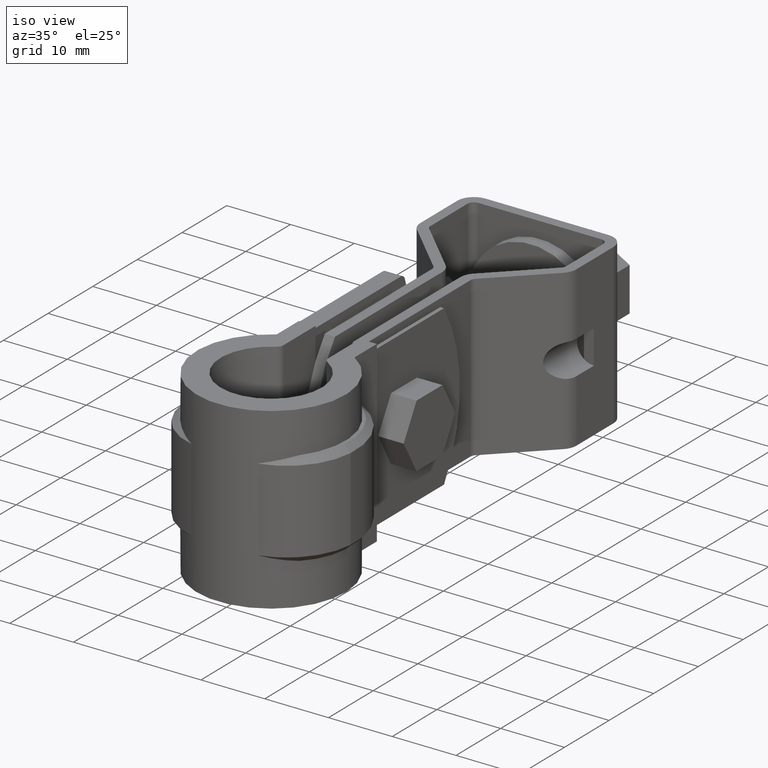
[diagram: clean part render]
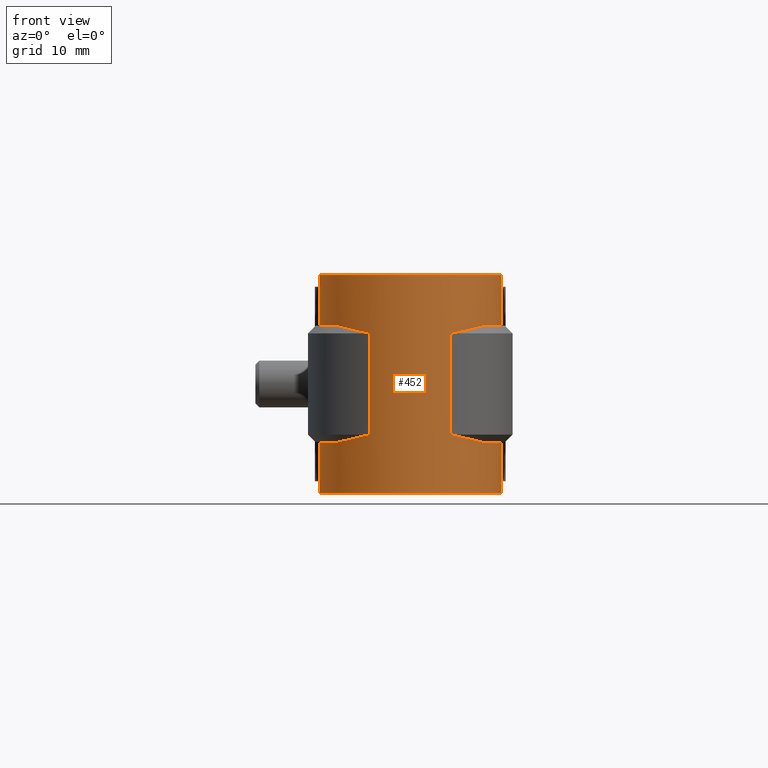
[diagram: tour spotlight — one face highlighted and labeled with its STEP entity id]
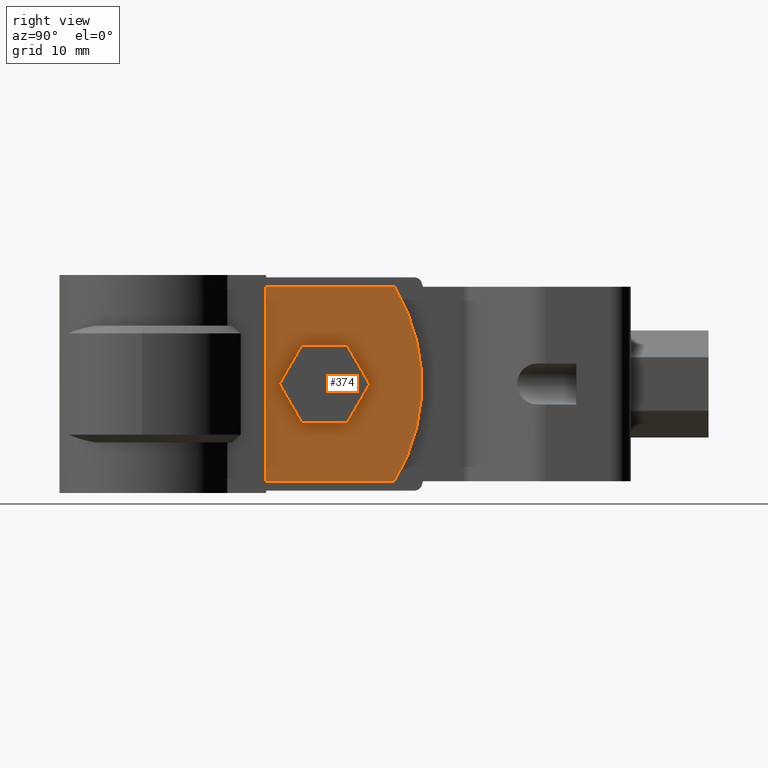
[diagram: tour spotlight — one face highlighted and labeled with its STEP entity id]
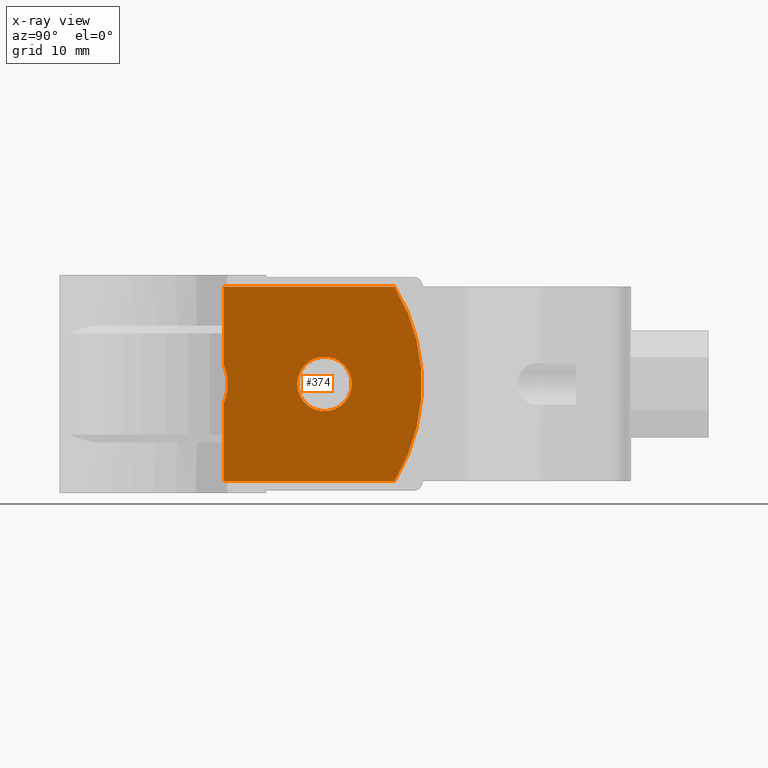
[diagram: x-ray of the same camera — body ghosted, this tour face saturated]
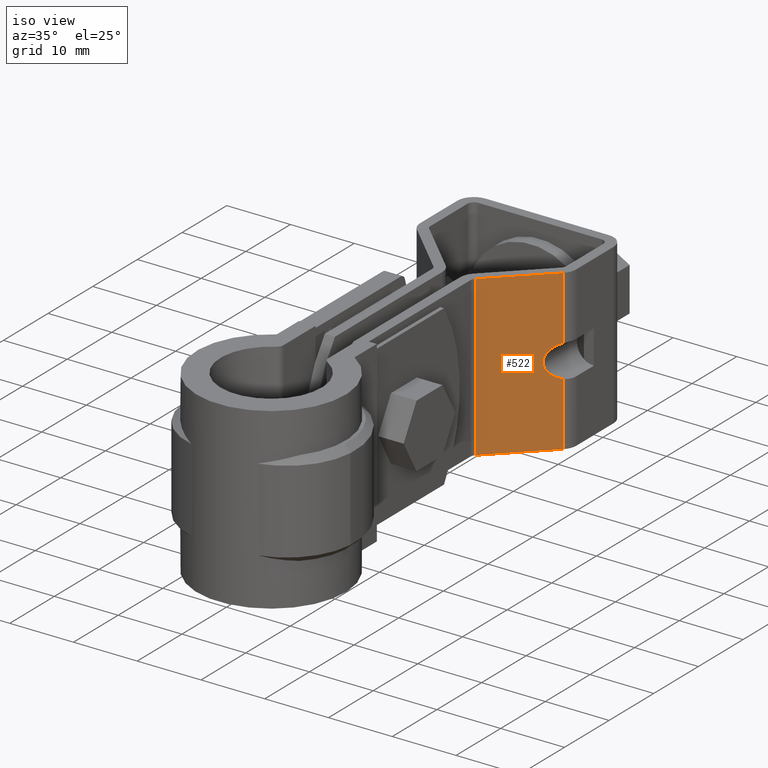
[diagram: tour spotlight — one face highlighted and labeled with its STEP entity id]
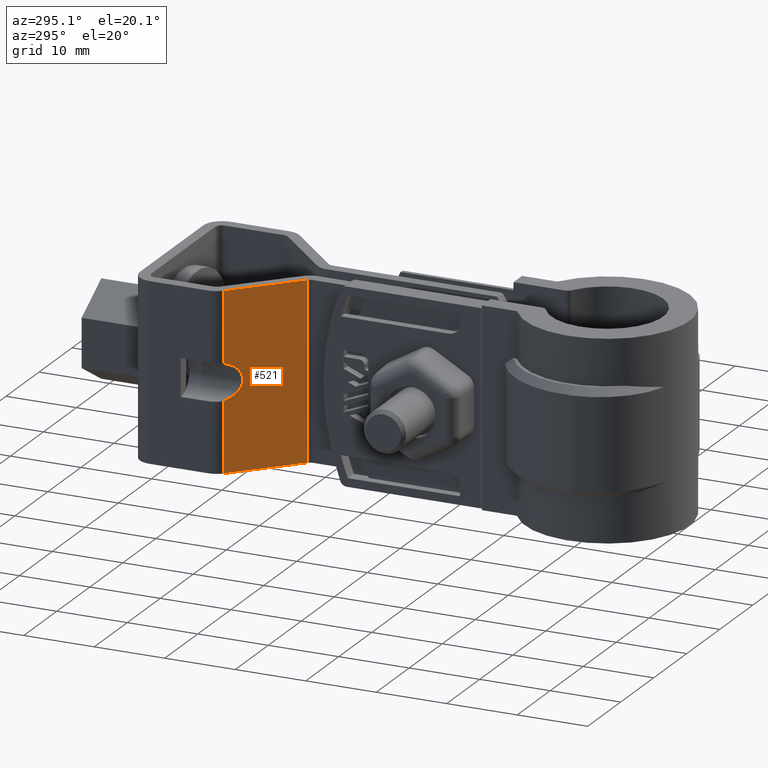
[diagram: tour spotlight — one face highlighted and labeled with its STEP entity id]
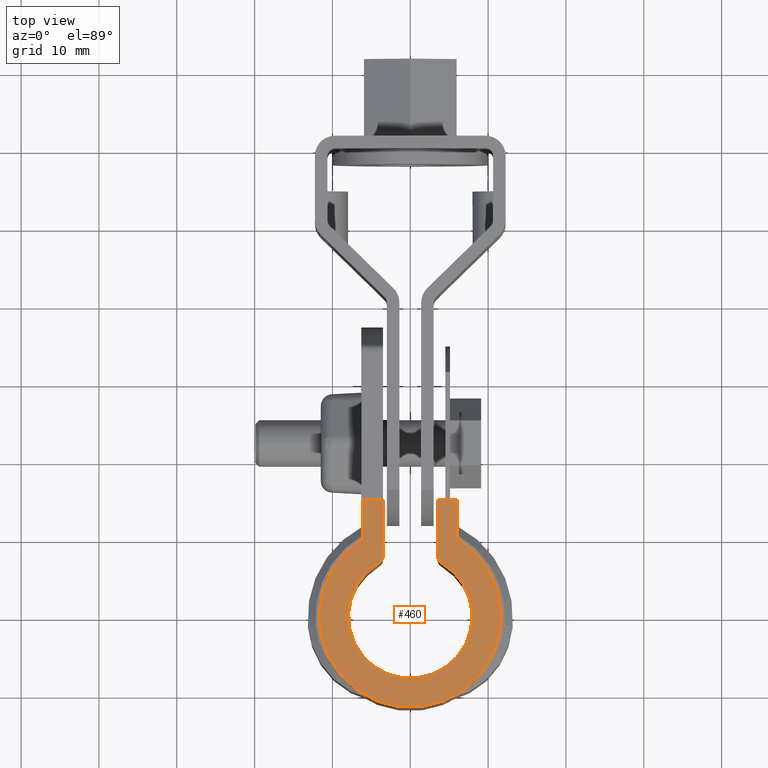
[diagram: tour spotlight — one face highlighted and labeled with its STEP entity id]
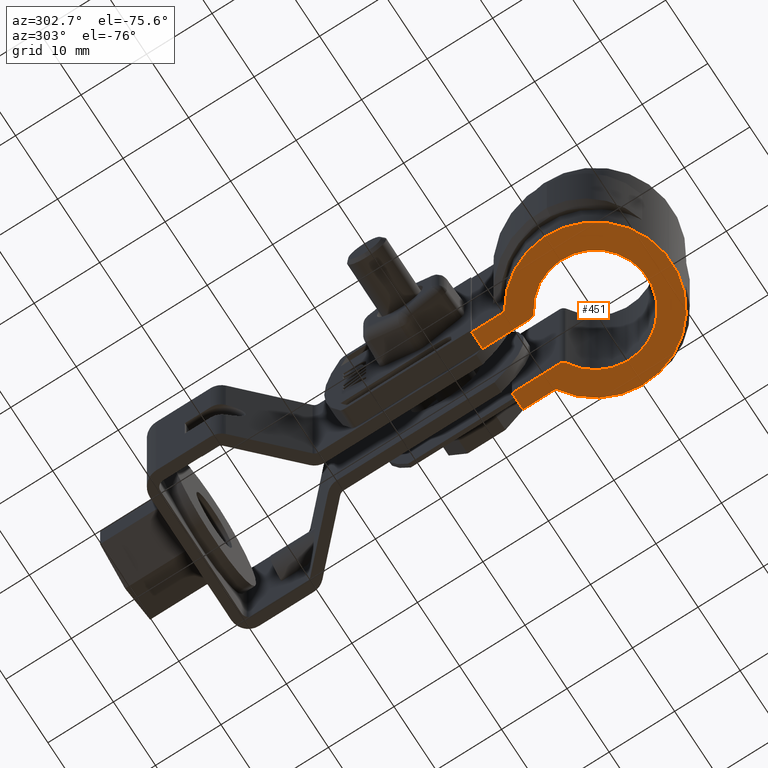
[diagram: tour spotlight — one face highlighted and labeled with its STEP entity id]
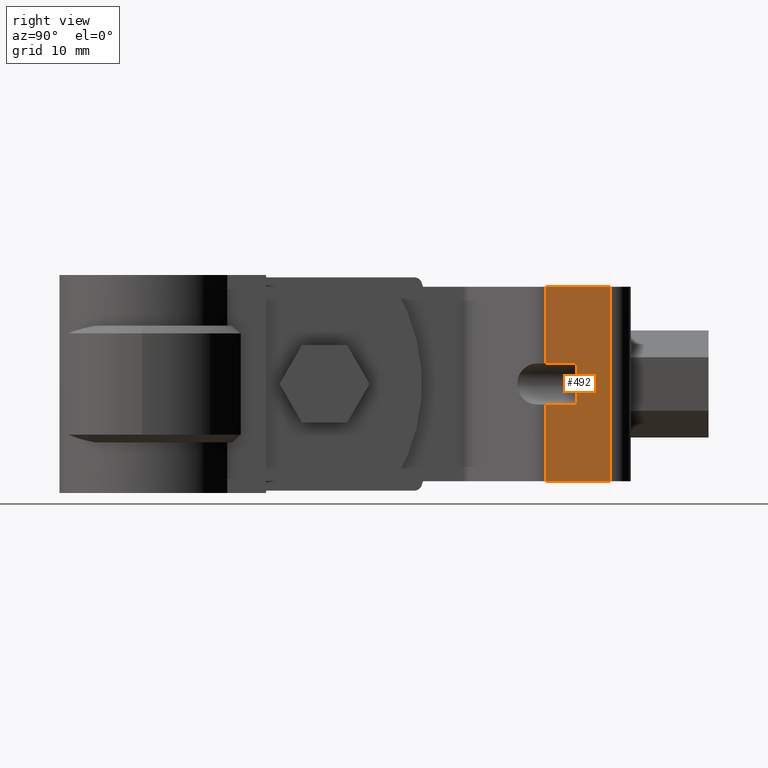
[diagram: tour spotlight — one face highlighted and labeled with its STEP entity id]
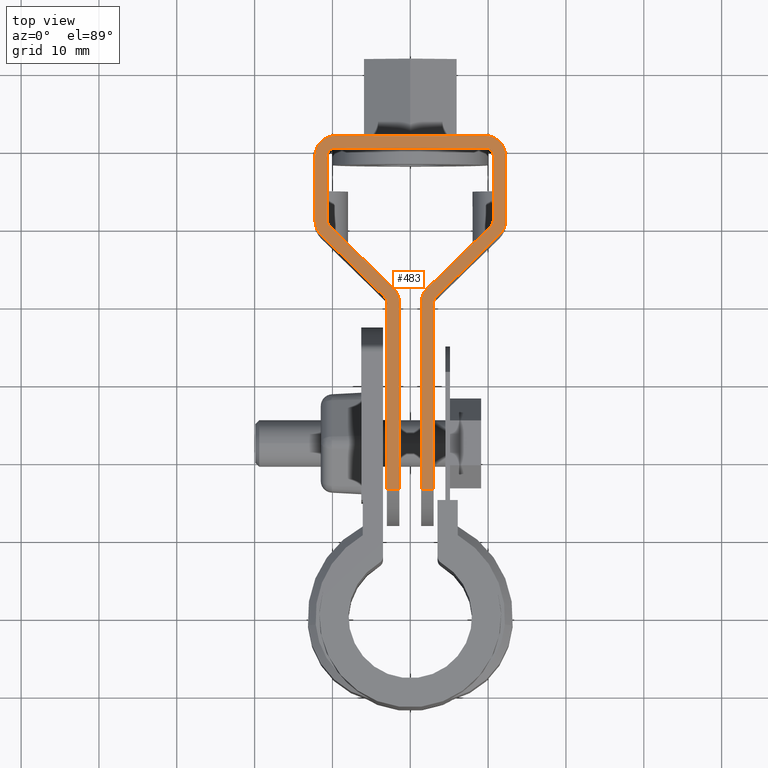
[diagram: tour spotlight — one face highlighted and labeled with its STEP entity id]
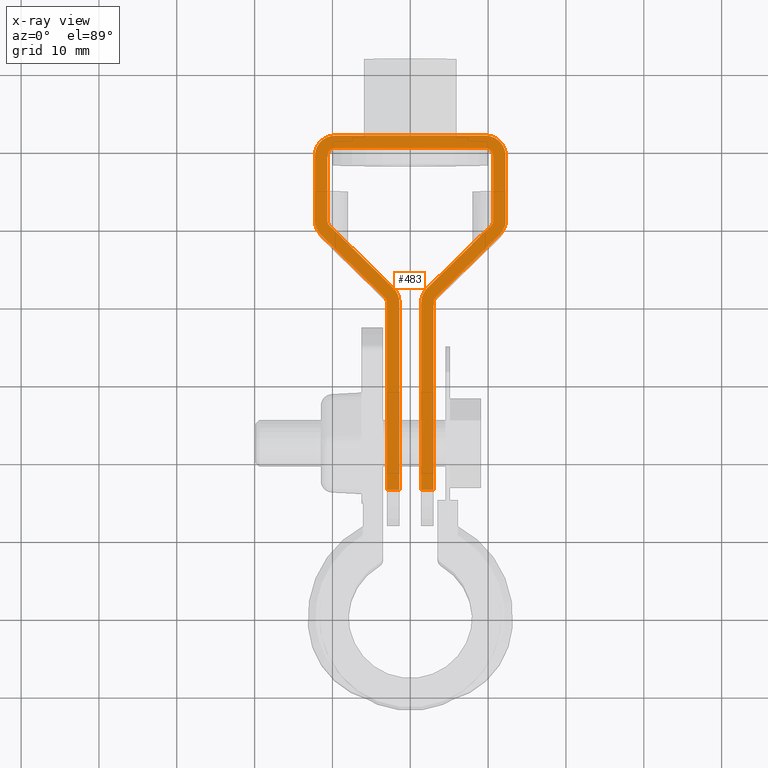
[diagram: x-ray of the same camera — body ghosted, this tour face saturated]
A machine part: a face-by-face anatomy tour. The part has 329 B-rep faces; the first image is the clean iso view, then the 8 largest visible faces are spotlighted one at a time (largest first), each with its STEP entity span.

Face 1 — front view, entity #452. In plain terms, the highlighted cylindrical surface (partial cylindrical patch) has radius 11.685 mm, axis along (0, 0, -1).
Definition (entity closure, byte-faithful):
#452 = ADVANCED_FACE( '', ( #878 ), #879, .T. );
#878 = FACE_OUTER_BOUND( '', #2159, .T. );
#879 = CYLINDRICAL_SURFACE( '', #2160, 11.6850000000000 );
#2159 = EDGE_LOOP( '', ( #4356, #4357, #4358, #4359, #4360, #4361, #4362, #4363, #4364, #4365, #4366, #4367, #4368, #4369, #4370, #4371 ) );
#2160 = AXIS2_PLACEMENT_3D( '', #4372, #4373, #4374 );
#4356 = ORIENTED_EDGE( '', *, *, #6669, .T. );
#4357 = ORIENTED_EDGE( '', *, *, #6833, .T. );
#4358 = ORIENTED_EDGE( '', *, *, #6825, .T. );
#4359 = ORIENTED_EDGE( '', *, *, #6834, .F. );
#4360 = ORIENTED_EDGE( '', *, *, #6835, .T. );
#4361 = ORIENTED_EDGE( '', *, *, #6836, .F. );
#4362 = ORIENTED_EDGE( '', *, *, #6663, .T. );
#4363 = ORIENTED_EDGE( '', *, *, #6837, .F. );
#4364 = ORIENTED_EDGE( '', *, *, #6679, .F. );
#4365 = ORIENTED_EDGE( '', *, *, #6838, .F. );
#4366 = ORIENTED_EDGE( '', *, *, #6839, .T. );
#4367 = ORIENTED_EDGE( '', *, *, #6840, .F. );
#4368 = ORIENTED_EDGE( '', *, *, #6841, .T. );
#4369 = ORIENTED_EDGE( '', *, *, #6842, .T. );
#4370 = ORIENTED_EDGE( '', *, *, #6673, .F. );
#4371 = ORIENTED_EDGE( '', *, *, #6830, .T. );
#4372 = CARTESIAN_POINT( '', ( 0.000000000000000, 0.000000000000000, -26.5000000000000 ) );
#4373 = DIRECTION( '', ( 0.000000000000000, 0.000000000000000, -1.00000000000000 ) );
#4374 = DIRECTION( '', ( 0.000000000000000, 1.00000000000000, 0.000000000000000 ) );
#6663 = EDGE_CURVE( '', #7684, #7682, #7685, .T. );
#6669 = EDGE_CURVE( '', #7677, #7694, #7696, .T. );
#6673 = EDGE_CURVE( '', #7702, #7704, #7705, .T. );
#6679 = EDGE_CURVE( '', #7714, #7698, #7716, .T. );
#6825 = EDGE_CURVE( '', #7967, #7965, #7968, .T. );
#6830 = EDGE_CURVE( '', #7702, #7677, #7974, .T. );
#6833 = EDGE_CURVE( '', #7694, #7967, #7977, .F. );
#6834 = EDGE_CURVE( '', #7978, #7965, #7979, .F. );
#6835 = EDGE_CURVE( '', #7978, #7980, #7981, .T. );
#6836 = EDGE_CURVE( '', #7684, #7980, #7982, .F. );
#6837 = EDGE_CURVE( '', #7698, #7682, #7983, .T. );
#6838 = EDGE_CURVE( '', #7984, #7714, #7985, .F. );
#6839 = EDGE_CURVE( '', #7984, #7986, #7987, .T. );
#6840 = EDGE_CURVE( '', #7988, #7986, #7989, .T. );
#6841 = EDGE_CURVE( '', #7988, #7990, #7991, .T. );
#6842 = EDGE_CURVE( '', #7990, #7704, #7992, .F. );
#7677 = VERTEX_POINT( '', #9911 );
#7682 = VERTEX_POINT( '', #9918 );
#7684 = VERTEX_POINT( '', #9921 );
#7685 = LINE( '', #9922, #9923 );
#7694 = VERTEX_POINT( '', #9940 );
#7696 = LINE( '', #9943, #9944 );
#7698 = VERTEX_POINT( '', #9946 );
#7702 = VERTEX_POINT( '', #9952 );
#7704 = VERTEX_POINT( '', #9955 );
#7705 = LINE( '', #9956, #9957 );
#7714 = VERTEX_POINT( '', #9974 );
#7716 = LINE( '', #9977, #9978 );
#7965 = VERTEX_POINT( '', #10899 );
#7967 = VERTEX_POINT( '', #10901 );
#7968 = B_SPLINE_CURVE_WITH_KNOTS( '', 3, ( #10902, #10903, #10904, #10905, #10906, #10907, #10908, #10909 ), .UNSPECIFIED., .F., .F., ( 4, 2, 2, 4 ), ( 0.000000000000000, 0.00277693447100946, 0.00416540170651419, 0.00555386894201892 ), .UNSPECIFIED. );
#7974 = CIRCLE( '', #10916, 11.6850000000000 );
#7977 = CIRCLE( '', #10921, 11.6850000000000 );
#7978 = VERTEX_POINT( '', #10922 );
#7979 = LINE( '', #10923, #10924 );
#7980 = VERTEX_POINT( '', #10925 );
#7981 = B_SPLINE_CURVE_WITH_KNOTS( '', 3, ( #10926, #10927, #10928, #10929, #10930, #10931, #10932, #10933 ), .UNSPECIFIED., .F., .F., ( 4, 2, 2, 4 ), ( 0.000000000000000, 0.00277665507141476, 0.00416498260712214, 0.00555331014282953 ), .UNSPECIFIED. );
#7982 = CIRCLE( '', #10934, 11.6850000000000 );
#7983 = CIRCLE( '', #10935, 11.6850000000000 );
#7984 = VERTEX_POINT( '', #10936 );
#7985 = CIRCLE( '', #10937, 11.6850000000000 );
#7986 = VERTEX_POINT( '', #10938 );
#7987 = B_SPLINE_CURVE_WITH_KNOTS( '', 3, ( #10939, #10940, #10941, #10942, #10943, #10944, #10945, #10946 ), .UNSPECIFIED., .F., .F., ( 4, 2, 2, 4 ), ( 8.67361737988404E-019, 0.00277693447100946, 0.00416540170651419, 0.00555386894201892 ), .UNSPECIFIED. );
#7988 = VERTEX_POINT( '', #10947 );
#7989 = LINE( '', #10948, #10949 );
#7990 = VERTEX_POINT( '', #10950 );
#7991 = B_SPLINE_CURVE_WITH_KNOTS( '', 3, ( #10951, #10952, #10953, #10954, #10955, #10956, #10957, #10958 ), .UNSPECIFIED., .F., .F., ( 4, 2, 2, 4 ), ( 0.000000000000000, 0.00277665507141476, 0.00416498260712214, 0.00555331014282953 ), .UNSPECIFIED. );
#7992 = CIRCLE( '', #10959, 11.6850000000000 );
#9911 = CARTESIAN_POINT( '', ( 6.10000000000000, 9.96640481818796, -26.5000000000000 ) );
#9918 = CARTESIAN_POINT( '', ( 6.10000000000000, 9.96640481818796, 1.50000000000000 ) );
#9921 = CARTESIAN_POINT( '', ( 6.10000000000000, 9.96640481818796, -5.00000000000000 ) );
#9922 = CARTESIAN_POINT( '', ( 6.10000000000000, 9.96640481818796, -26.5000000000000 ) );
#9923 = VECTOR( '', #12674, 1000.00000000000 );
#9940 = CARTESIAN_POINT( '', ( 6.10000000000000, 9.96640481818796, -20.0000000000000 ) );
#9943 = CARTESIAN_POINT( '', ( 6.10000000000000, 9.96640481818796, -26.5000000000000 ) );
#9944 = VECTOR( '', #12678, 1000.00000000000 );
#9946 = CARTESIAN_POINT( '', ( -6.10000000000000, 9.96640481818794, 1.50000000000000 ) );
#9952 = CARTESIAN_POINT( '', ( -6.10000000000000, 9.96640481818794, -26.5000000000000 ) );
#9955 = CARTESIAN_POINT( '', ( -6.10000000000000, 9.96640481818794, -20.0000000000000 ) );
#9956 = CARTESIAN_POINT( '', ( -6.10000000000000, 9.96640481818794, -26.5000000000000 ) );
#9957 = VECTOR( '', #12682, 1000.00000000000 );
#9974 = CARTESIAN_POINT( '', ( -6.10000000000001, 9.96640481818795, -5.00000000000000 ) );
#9977 = CARTESIAN_POINT( '', ( -6.10000000000000, 9.96640481818794, -26.5000000000000 ) );
#9978 = VECTOR( '', #12686, 1000.00000000000 );
#10899 = CARTESIAN_POINT( '', ( 5.17424711952815, -10.4769457260241, -19.0000000000000 ) );
#10901 = CARTESIAN_POINT( '', ( 9.36374855338446, -6.98995264855138, -20.0000000000000 ) );
#10902 = CARTESIAN_POINT( '', ( 9.36374855338446, -6.98995264855138, -20.0000000000000 ) );
#10903 = CARTESIAN_POINT( '', ( 8.80777141071313, -7.73474026402721, -19.8662567322832 ) );
#10904 = CARTESIAN_POINT( '', ( 8.17732976921470, -8.39659906995325, -19.7135949908876 ) );
#10905 = CARTESIAN_POINT( '', ( 7.12557712528808, -9.27218792441015, -19.4614185974445 ) );
#10906 = CARTESIAN_POINT( '', ( 6.75595603801265, -9.54504092295827, -19.3731627320375 ) );
#10907 = CARTESIAN_POINT( '', ( 5.98484098098968, -10.0465131583437, -19.1902773140702 ) );
#10908 = CARTESIAN_POINT( '', ( 5.58611941732229, -10.2735344355388, -19.0963034165744 ) );
#10909 = CARTESIAN_POINT( '', ( 5.17424711952815, -10.4769457260241, -19.0000000000000 ) );
#10916 = AXIS2_PLACEMENT_3D( '', #12851, #12852, #12853 );
#10921 = AXIS2_PLACEMENT_3D( '', #12856, #12857, #12858 );
#10922 = CARTESIAN_POINT( '', ( 5.17424711952815, -10.4769457260241, -6.00000000000000 ) );
#10923 = CARTESIAN_POINT( '', ( 5.17424711952815, -10.4769457260241, -12.5000000000000 ) );
#10924 = VECTOR( '', #12859, 1000.00000000000 );
#10925 = CARTESIAN_POINT( '', ( 9.36374855338446, -6.98995264855138, -5.00000000000000 ) );
#10926 = CARTESIAN_POINT( '', ( 5.17424711952815, -10.4769457260241, -6.00000000000000 ) );
#10927 = CARTESIAN_POINT( '', ( 5.99812038289880, -10.0700595999212, -5.80736308192648 ) );
#10928 = CARTESIAN_POINT( '', ( 6.76012271471017, -9.57453056652366, -5.62618566399186 ) );
#10929 = CARTESIAN_POINT( '', ( 7.81281671051151, -8.70097910983363, -5.37381316001744 ) );
#10930 = CARTESIAN_POINT( '', ( 8.14915820169525, -8.38717719181260, -5.29280727259839 ) );
#10931 = CARTESIAN_POINT( '', ( 8.78712108340779, -7.71621822583115, -5.13897519271562 ) );
#10932 = CARTESIAN_POINT( '', ( 9.08572746453964, -7.36239001678169, -5.06687945611871 ) );
#10933 = CARTESIAN_POINT( '', ( 9.36374855338446, -6.98995264855138, -5.00000000000000 ) );
#10934 = AXIS2_PLACEMENT_3D( '', #12860, #12861, #12862 );
#10935 = AXIS2_PLACEMENT_3D( '', #12863, #12864, #12865 );
#10936 = CARTESIAN_POINT( '', ( -9.36374855338446, -6.98995264855138, -5.00000000000000 ) );
#10937 = AXIS2_PLACEMENT_3D( '', #12866, #12867, #12868 );
#10938 = CARTESIAN_POINT( '', ( -5.17424711952815, -10.4769457260241, -6.00000000000000 ) );
#10939 = CARTESIAN_POINT( '', ( -9.36374855338446, -6.98995264855138, -5.00000000000000 ) );
#10940 = CARTESIAN_POINT( '', ( -8.80777141071313, -7.73474026402720, -5.13374326771682 ) );
#10941 = CARTESIAN_POINT( '', ( -8.17732976921470, -8.39659906995325, -5.28640500911235 ) );
#10942 = CARTESIAN_POINT( '', ( -7.12557712528808, -9.27218792441015, -5.53858140255554 ) );
#10943 = CARTESIAN_POINT( '', ( -6.75595603801265, -9.54504092295827, -5.62683726796246 ) );
#10944 = CARTESIAN_POINT( '', ( -5.98484098098968, -10.0465131583437, -5.80972268592979 ) );
#10945 = CARTESIAN_POINT( '', ( -5.58611941732229, -10.2735344355388, -5.90369658342556 ) );
#10946 = CARTESIAN_POINT( '', ( -5.17424711952815, -10.4769457260241, -6.00000000000000 ) );
#10947 = CARTESIAN_POINT( '', ( -5.17424711952815, -10.4769457260241, -19.0000000000000 ) );
#10948 = CARTESIAN_POINT( '', ( -5.17424711952815, -10.4769457260241, -12.5000000000000 ) );
#10949 = VECTOR( '', #12869, 1000.00000000000 );
#10950 = CARTESIAN_POINT( '', ( -9.36374855338446, -6.98995264855138, -20.0000000000000 ) );
#10951 = CARTESIAN_POINT( '', ( -5.17424711952815, -10.4769457260241, -19.0000000000000 ) );
#10952 = CARTESIAN_POINT( '', ( -5.99812038289880, -10.0700595999212, -19.1926369180735 ) );
#10953 = CARTESIAN_POINT( '', ( -6.76012271471017, -9.57453056652366, -19.3738143360081 ) );
#10954 = CARTESIAN_POINT( '', ( -7.81281671051151, -8.70097910983362, -19.6261868399826 ) );
#10955 = CARTESIAN_POINT( '', ( -8.14915820169525, -8.38717719181261, -19.7071927274016 ) );
#10956 = CARTESIAN_POINT( '', ( -8.78712108340779, -7.71621822583115, -19.8610248072844 ) );
#10957 = CARTESIAN_POINT( '', ( -9.08572746453964, -7.36239001678170, -19.9331205438813 ) );
#10958 = CARTESIAN_POINT( '', ( -9.36374855338446, -6.98995264855138, -20.0000000000000 ) );
#10959 = AXIS2_PLACEMENT_3D( '', #12870, #12871, #12872 );
#12674 = DIRECTION( '', ( 0.000000000000000, 0.000000000000000, 1.00000000000000 ) );
#12678 = DIRECTION( '', ( 0.000000000000000, 0.000000000000000, 1.00000000000000 ) );
#12682 = DIRECTION( '', ( 0.000000000000000, 0.000000000000000, 1.00000000000000 ) );
#12686 = DIRECTION( '', ( 0.000000000000000, 0.000000000000000, 1.00000000000000 ) );
#12851 = CARTESIAN_POINT( '', ( 0.000000000000000, 0.000000000000000, -26.5000000000000 ) );
#12852 = DIRECTION( '', ( 0.000000000000000, 0.000000000000000, 1.00000000000000 ) );
#12853 = DIRECTION( '', ( 1.00000000000000, 0.000000000000000, 0.000000000000000 ) );
#12856 = CARTESIAN_POINT( '', ( 0.000000000000000, 0.000000000000000, -20.0000000000000 ) );
#12857 = DIRECTION( '', ( 0.000000000000000, 0.000000000000000, 1.00000000000000 ) );
#12858 = DIRECTION( '', ( 1.00000000000000, 0.000000000000000, 0.000000000000000 ) );
#12859 = DIRECTION( '', ( 0.000000000000000, 0.000000000000000, 1.00000000000000 ) );
#12860 = CARTESIAN_POINT( '', ( 0.000000000000000, 0.000000000000000, -5.00000000000000 ) );
#12861 = DIRECTION( '', ( 0.000000000000000, 0.000000000000000, 1.00000000000000 ) );
#12862 = DIRECTION( '', ( 1.00000000000000, 0.000000000000000, 0.000000000000000 ) );
#12863 = CARTESIAN_POINT( '', ( 0.000000000000000, 0.000000000000000, 1.50000000000000 ) );
#12864 = DIRECTION( '', ( 0.000000000000000, 0.000000000000000, 1.00000000000000 ) );
#12865 = DIRECTION( '', ( 1.00000000000000, 0.000000000000000, 0.000000000000000 ) );
#12866 = CARTESIAN_POINT( '', ( 0.000000000000000, 0.000000000000000, -5.00000000000000 ) );
#12867 = DIRECTION( '', ( 0.000000000000000, 0.000000000000000, 1.00000000000000 ) );
#12868 = DIRECTION( '', ( 1.00000000000000, 0.000000000000000, 0.000000000000000 ) );
#12869 = DIRECTION( '', ( 0.000000000000000, 0.000000000000000, 1.00000000000000 ) );
#12870 = CARTESIAN_POINT( '', ( 0.000000000000000, 0.000000000000000, -20.0000000000000 ) );
#12871 = DIRECTION( '', ( 0.000000000000000, 0.000000000000000, 1.00000000000000 ) );
#12872 = DIRECTION( '', ( 1.00000000000000, 0.000000000000000, 0.000000000000000 ) );

Face 2 — right view, entity #374. An x-ray twin of the same camera follows (body ghosted, this face saturated) — the face is partly hidden behind the body. In plain terms, the highlighted planar face has unit normal (-1, 0, 0).
Definition (entity closure, byte-faithful):
#374 = ADVANCED_FACE( '', ( #715, #716 ), #717, .F. );
#715 = FACE_OUTER_BOUND( '', #1420, .T. );
#716 = FACE_BOUND( '', #1421, .T. );
#717 = PLANE( '', #1422 );
#1420 = EDGE_LOOP( '', ( #3218, #3219, #3220, #3221, #3222, #3223 ) );
#1421 = EDGE_LOOP( '', ( #3224 ) );
#1422 = AXIS2_PLACEMENT_3D( '', #3225, #3226, #3227 );
#3218 = ORIENTED_EDGE( '', *, *, #6567, .T. );
#3219 = ORIENTED_EDGE( '', *, *, #6558, .T. );
#3220 = ORIENTED_EDGE( '', *, *, #6572, .T. );
#3221 = ORIENTED_EDGE( '', *, *, #6575, .T. );
#3222 = ORIENTED_EDGE( '', *, *, #6576, .F. );
#3223 = ORIENTED_EDGE( '', *, *, #6538, .F. );
#3224 = ORIENTED_EDGE( '', *, *, #6577, .F. );
#3225 = CARTESIAN_POINT( '', ( 5.10000000000000, 9.54618248306621, 0.000000000000000 ) );
#3226 = DIRECTION( '', ( -1.00000000000000, 6.12303176911189E-017, 0.000000000000000 ) );
#3227 = DIRECTION( '', ( 6.12303176911189E-017, 1.00000000000000, 0.000000000000000 ) );
#6538 = EDGE_CURVE( '', #7477, #7479, #7480, .T. );
#6558 = EDGE_CURVE( '', #7517, #7515, #7518, .T. );
#6567 = EDGE_CURVE( '', #7477, #7517, #7531, .T. );
#6572 = EDGE_CURVE( '', #7515, #7538, #7539, .T. );
#6575 = EDGE_CURVE( '', #7538, #7543, #7544, .T. );
#6576 = EDGE_CURVE( '', #7479, #7543, #7545, .T. );
#6577 = EDGE_CURVE( '', #7546, #7546, #7547, .F. );
#7477 = VERTEX_POINT( '', #9106 );
#7479 = VERTEX_POINT( '', #9108 );
#7480 = LINE( '', #9109, #9110 );
#7515 = VERTEX_POINT( '', #9253 );
#7517 = VERTEX_POINT( '', #9264 );
#7518 = B_SPLINE_CURVE_WITH_KNOTS( '', 3, ( #9265, #9266, #9267, #9268, #9269, #9270, #9271, #9272, #9273, #9274 ), .UNSPECIFIED., .F., .F., ( 4, 2, 2, 2, 4 ), ( 1.73472347597681E-018, 0.00122789731250864, 0.00245579462501728, 0.00368369193752592, 0.00491158925003456 ), .UNSPECIFIED. );
#7531 = LINE( '', #9405, #9406 );
#7538 = VERTEX_POINT( '', #9429 );
#7539 = LINE( '', #9430, #9431 );
#7543 = VERTEX_POINT( '', #9436 );
#7544 = LINE( '', #9437, #9438 );
#7545 = CIRCLE( '', #9439, 24.0000000000000 );
#7546 = VERTEX_POINT( '', #9440 );
#7547 = CIRCLE( '', #9441, 3.50000000000000 );
#9106 = CARTESIAN_POINT( '', ( 5.10000000000000, 9.54618248306621, 0.000000000000000 ) );
#9108 = CARTESIAN_POINT( '', ( 5.10000000000000, 31.4432773499513, 0.000000000000000 ) );
#9109 = CARTESIAN_POINT( '', ( 5.10000000000000, 9.54618248306621, 0.000000000000000 ) );
#9110 = VECTOR( '', #12544, 1000.00000000000 );
#9253 = CARTESIAN_POINT( '', ( 5.10000000000000, 9.54618248306621, -14.9137184247947 ) );
#9264 = CARTESIAN_POINT( '', ( 5.10000000000000, 9.54618248306621, -10.0862815752053 ) );
#9265 = CARTESIAN_POINT( '', ( 5.10000000000000, 9.54618248306621, -10.0862815752053 ) );
#9266 = CARTESIAN_POINT( '', ( 5.10000000000000, 9.70232047986149, -10.4734165991022 ) );
#9267 = CARTESIAN_POINT( '', ( 5.09999999999994, 9.81833738479104, -10.8680846588988 ) );
#9268 = CARTESIAN_POINT( '', ( 5.09999999999994, 9.97519419553779, -11.6715358238912 ) );
#9269 = CARTESIAN_POINT( '', ( 5.10000000000000, 10.0160405807230, -12.0803177125371 ) );
#9270 = CARTESIAN_POINT( '', ( 5.10000000000000, 10.0164716174228, -12.9131389897759 ) );
#9271 = CARTESIAN_POINT( '', ( 5.10000000000000, 9.97563247072795, -13.3256423648655 ) );
#9272 = CARTESIAN_POINT( '', ( 5.10000000000000, 9.81856702657030, -14.1313135051362 ) );
#9273 = CARTESIAN_POINT( '', ( 5.09999999999999, 9.70233662319714, -14.5265433744421 ) );
#9274 = CARTESIAN_POINT( '', ( 5.09999999999999, 9.54618248306621, -14.9137184247948 ) );
#9405 = CARTESIAN_POINT( '', ( 5.10000000000000, 9.54618248306621, 0.000000000000000 ) );
#9406 = VECTOR( '', #12563, 1000.00000000000 );
#9429 = CARTESIAN_POINT( '', ( 5.10000000000000, 9.54618248306621, -25.0000000000000 ) );
#9430 = CARTESIAN_POINT( '', ( 5.10000000000000, 9.54618248306621, 0.000000000000000 ) );
#9431 = VECTOR( '', #12567, 1000.00000000000 );
#9436 = CARTESIAN_POINT( '', ( 5.10000000000000, 31.4432773499512, -25.0000000000000 ) );
#9437 = CARTESIAN_POINT( '', ( 5.10000000000000, 9.54618248306621, -25.0000000000000 ) );
#9438 = VECTOR( '', #12572, 1000.00000000000 );
#9439 = AXIS2_PLACEMENT_3D( '', #12573, #12574, #12575 );
#9440 = CARTESIAN_POINT( '', ( 5.10000000000000, 18.9554761014034, -12.5000000000000 ) );
#9441 = AXIS2_PLACEMENT_3D( '', #12576, #12577, #12578 );
#12544 = DIRECTION( '', ( 6.12303176911189E-017, 1.00000000000000, 0.000000000000000 ) );
#12563 = DIRECTION( '', ( 0.000000000000000, 0.000000000000000, -1.00000000000000 ) );
#12567 = DIRECTION( '', ( 0.000000000000000, 0.000000000000000, -1.00000000000000 ) );
#12572 = DIRECTION( '', ( 6.12303176911189E-017, 1.00000000000000, 0.000000000000000 ) );
#12573 = CARTESIAN_POINT( '', ( 5.10000000000000, 10.9554761014034, -12.5000000000000 ) );
#12574 = DIRECTION( '', ( -1.00000000000000, 6.12303176911189E-017, 0.000000000000000 ) );
#12575 = DIRECTION( '', ( -6.12303176911189E-017, -1.00000000000000, 0.000000000000000 ) );
#12576 = CARTESIAN_POINT( '', ( 5.10000000000000, 22.4554761014034, -12.5000000000000 ) );
#12577 = DIRECTION( '', ( -1.00000000000000, 6.12303176911189E-017, 0.000000000000000 ) );
#12578 = DIRECTION( '', ( -6.12303176911189E-017, -1.00000000000000, 0.000000000000000 ) );

Face 3 — iso view, entity #522. In plain terms, the highlighted planar face has unit normal (0.6983, -0.7158, 0).
Definition (entity closure, byte-faithful):
#522 = ADVANCED_FACE( '', ( #1026 ), #1027, .T. );
#1026 = FACE_OUTER_BOUND( '', #2307, .T. );
#1027 = PLANE( '', #2308 );
#2307 = EDGE_LOOP( '', ( #5135, #5136, #5137, #5138, #5139, #5140 ) );
#2308 = AXIS2_PLACEMENT_3D( '', #5141, #5142, #5143 );
#5135 = ORIENTED_EDGE( '', *, *, #6996, .T. );
#5136 = ORIENTED_EDGE( '', *, *, #7002, .F. );
#5137 = ORIENTED_EDGE( '', *, *, #6909, .T. );
#5138 = ORIENTED_EDGE( '', *, *, #6928, .F. );
#5139 = ORIENTED_EDGE( '', *, *, #6888, .F. );
#5140 = ORIENTED_EDGE( '', *, *, #7003, .F. );
#5141 = CARTESIAN_POINT( '', ( 3.90167616446854, 41.6507702966150, -6.24389429049188E-010 ) );
#5142 = DIRECTION( '', ( 0.698323835530607, -0.715781964518402, 3.84601362143794E-012 ) );
#5143 = DIRECTION( '', ( -0.715781964518401, -0.698323835530607, 3.45496296925652E-012 ) );
#6888 = EDGE_CURVE( '', #8060, #8062, #8063, .T. );
#6909 = EDGE_CURVE( '', #8100, #8101, #8102, .T. );
#6928 = EDGE_CURVE( '', #8062, #8101, #8133, .T. );
#6996 = EDGE_CURVE( '', #8240, #8238, #8241, .T. );
#7002 = EDGE_CURVE( '', #8100, #8238, #8248, .T. );
#7003 = EDGE_CURVE( '', #8240, #8060, #8249, .T. );
#8060 = VERTEX_POINT( '', #11085 );
#8062 = VERTEX_POINT( '', #11087 );
#8063 = LINE( '', #11088, #11089 );
#8100 = VERTEX_POINT( '', #11137 );
#8101 = VERTEX_POINT( '', #11138 );
#8102 = ELLIPSE( '', #11139, 3.70224472166266, 2.64999999999997 );
#8133 = LINE( '', #11205, #11206 );
#8238 = VERTEX_POINT( '', #11379 );
#8240 = VERTEX_POINT( '', #11381 );
#8241 = LINE( '', #11382, #11383 );
#8248 = LINE( '', #11393, #11394 );
#8249 = LINE( '', #11395, #11396 );
#11085 = CARTESIAN_POINT( '', ( 3.30167616446862, 41.0654044700253, -6.21502849185163E-010 ) );
#11087 = CARTESIAN_POINT( '', ( 11.4656419723772, 49.0302487923537, -6.60901888771548E-010 ) );
#11088 = CARTESIAN_POINT( '', ( 3.90167616446854, 41.6507702966150, -6.24389429049188E-010 ) );
#11089 = VECTOR( '', #12955, 1000.00000000000 );
#11137 = CARTESIAN_POINT( '', ( 11.4656419723804, 49.0302487922760, -15.0312610469591 ) );
#11138 = CARTESIAN_POINT( '', ( 11.4656419723793, 49.0302487923022, -9.96873895436266 ) );
#11139 = AXIS2_PLACEMENT_3D( '', #12994, #12995, #12996 );
#11205 = CARTESIAN_POINT( '', ( 11.4656419723772, 49.0302487923537, -6.60901888771548E-010 ) );
#11206 = VECTOR( '', #13021, 1000.00000000000 );
#11379 = CARTESIAN_POINT( '', ( 11.4656419723825, 49.0302487922246, -25.0000000006609 ) );
#11381 = CARTESIAN_POINT( '', ( 3.30167616447394, 41.0654044698961, -25.0000000006215 ) );
#11382 = CARTESIAN_POINT( '', ( 3.90167616447386, 41.6507702964858, -25.0000000006244 ) );
#11383 = VECTOR( '', #13127, 1000.00000000000 );
#11393 = CARTESIAN_POINT( '', ( 11.4656419723772, 49.0302487923537, -6.60901888771548E-010 ) );
#11394 = VECTOR( '', #13137, 1000.00000000000 );
#11395 = CARTESIAN_POINT( '', ( 3.30167616446862, 41.0654044700253, -6.21516726972970E-010 ) );
#11396 = VECTOR( '', #13138, 1000.00000000000 );
#12955 = DIRECTION( '', ( 0.715781964518398, 0.698323835530610, -3.45496296925654E-012 ) );
#12994 = CARTESIAN_POINT( '', ( 12.2500000000004, 49.7954761009232, -12.5000000006647 ) );
#12995 = DIRECTION( '', ( -0.698323835530605, 0.715781964518403, -3.84604872388571E-012 ) );
#12996 = DIRECTION( '', ( 0.715781964518403, 0.698323835530605, -3.45492698924589E-012 ) );
#13021 = DIRECTION( '', ( 2.12762802152738E-013, -5.16559017782481E-012, -1.00000000000000 ) );
#13127 = DIRECTION( '', ( 0.715781964518398, 0.698323835530610, -3.45496296925654E-012 ) );
#13137 = DIRECTION( '', ( 2.12762802152738E-013, -5.16559017782481E-012, -1.00000000000000 ) );
#13138 = DIRECTION( '', ( -2.12824032470429E-013, 5.16553044093226E-012, 1.00000000000000 ) );

Face 4 — auxiliary view, entity #521. In plain terms, the highlighted planar face has unit normal (-0.6983, -0.7158, 0).
Definition (entity closure, byte-faithful):
#521 = ADVANCED_FACE( '', ( #1024 ), #1025, .T. );
#1024 = FACE_OUTER_BOUND( '', #2305, .T. );
#1025 = PLANE( '', #2306 );
#2305 = EDGE_LOOP( '', ( #5126, #5127, #5128, #5129, #5130, #5131 ) );
#2306 = AXIS2_PLACEMENT_3D( '', #5132, #5133, #5134 );
#5126 = ORIENTED_EDGE( '', *, *, #6992, .F. );
#5127 = ORIENTED_EDGE( '', *, *, #6947, .T. );
#5128 = ORIENTED_EDGE( '', *, *, #6896, .T. );
#5129 = ORIENTED_EDGE( '', *, *, #6977, .T. );
#5130 = ORIENTED_EDGE( '', *, *, #6967, .F. );
#5131 = ORIENTED_EDGE( '', *, *, #7001, .T. );
#5132 = CARTESIAN_POINT( '', ( -3.90167616447045, 41.6507702966135, -6.26082519161741E-010 ) );
#5133 = DIRECTION( '', ( -0.698323835530393, -0.715781964518610, 3.54885894932398E-012 ) );
#5134 = DIRECTION( '', ( 0.715781964518610, -0.698323835530393, 3.75954652225811E-012 ) );
#6896 = EDGE_CURVE( '', #8078, #8076, #8079, .T. );
#6947 = EDGE_CURVE( '', #8159, #8078, #8162, .T. );
#6967 = EDGE_CURVE( '', #8196, #8197, #8198, .T. );
#6977 = EDGE_CURVE( '', #8076, #8197, #8212, .T. );
#6992 = EDGE_CURVE( '', #8159, #8233, #8234, .T. );
#7001 = EDGE_CURVE( '', #8196, #8233, #8247, .T. );
#8076 = VERTEX_POINT( '', #11105 );
#8078 = VERTEX_POINT( '', #11107 );
#8079 = LINE( '', #11108, #11109 );
#8159 = VERTEX_POINT( '', #11245 );
#8162 = LINE( '', #11249, #11250 );
#8196 = VERTEX_POINT( '', #11303 );
#8197 = VERTEX_POINT( '', #11304 );
#8198 = ELLIPSE( '', #11305, 3.70224472166266, 2.64999999999997 );
#8212 = LINE( '', #11340, #11341 );
#8233 = VERTEX_POINT( '', #11372 );
#8234 = LINE( '', #11373, #11374 );
#8247 = LINE( '', #11391, #11392 );
#11105 = CARTESIAN_POINT( '', ( -11.4656419723814, 49.0302487923500, -6.65814625655514E-010 ) );
#11107 = CARTESIAN_POINT( '', ( -3.30167616447036, 41.0654044700240, -6.22932261329368E-010 ) );
#11108 = CARTESIAN_POINT( '', ( -3.90167616447045, 41.6507702966135, -6.26082519161741E-010 ) );
#11109 = VECTOR( '', #12971, 1000.00000000000 );
#11245 = CARTESIAN_POINT( '', ( -3.30167616446504, 41.0654044698948, -25.0000000006229 ) );
#11249 = CARTESIAN_POINT( '', ( -3.30167616447036, 41.0654044700240, -6.22946139117175E-010 ) );
#11250 = VECTOR( '', #13048, 1000.00000000000 );
#11303 = CARTESIAN_POINT( '', ( -11.4656419723782, 49.0302487922723, -15.0312610469640 ) );
#11304 = CARTESIAN_POINT( '', ( -11.4656419723792, 49.0302487922984, -9.96873895436758 ) );
#11305 = AXIS2_PLACEMENT_3D( '', #13082, #13083, #13084 );
#11340 = CARTESIAN_POINT( '', ( -11.4656419723814, 49.0302487923500, -6.65814625655514E-010 ) );
#11341 = VECTOR( '', #13096, 1000.00000000000 );
#11372 = CARTESIAN_POINT( '', ( -11.4656419723760, 49.0302487922208, -25.0000000006658 ) );
#11373 = CARTESIAN_POINT( '', ( -3.90167616446514, 41.6507702964844, -25.0000000006261 ) );
#11374 = VECTOR( '', #13119, 1000.00000000000 );
#11391 = CARTESIAN_POINT( '', ( -11.4656419723814, 49.0302487923500, -6.65814625655514E-010 ) );
#11392 = VECTOR( '', #13136, 1000.00000000000 );
#12971 = DIRECTION( '', ( -0.715781964518610, 0.698323835530393, -3.75954652225811E-012 ) );
#13048 = DIRECTION( '', ( -2.12701571835047E-013, 5.16553044093226E-012, 1.00000000000000 ) );
#13082 = CARTESIAN_POINT( '', ( -12.2499999999995, 49.7954761009192, -12.5000000006699 ) );
#13083 = DIRECTION( '', ( -0.698323835530391, -0.715781964518612, 3.54889405177176E-012 ) );
#13084 = DIRECTION( '', ( -0.715781964518612, 0.698323835530391, -3.75951054224748E-012 ) );
#13096 = DIRECTION( '', ( 2.12762802152738E-013, -5.16559017782481E-012, -1.00000000000000 ) );
#13119 = DIRECTION( '', ( -0.715781964518610, 0.698323835530393, -3.75954652225811E-012 ) );
#13136 = DIRECTION( '', ( 2.12762802152738E-013, -5.16559017782481E-012, -1.00000000000000 ) );

Face 5 — top view, entity #460. In plain terms, the highlighted planar face has unit normal (0, 0, 1).
Definition (entity closure, byte-faithful):
#460 = ADVANCED_FACE( '', ( #894 ), #895, .T. );
#894 = FACE_OUTER_BOUND( '', #2175, .T. );
#895 = PLANE( '', #2176 );
#2175 = EDGE_LOOP( '', ( #4424, #4425, #4426, #4427, #4428, #4429, #4430, #4431, #4432, #4433 ) );
#2176 = AXIS2_PLACEMENT_3D( '', #4434, #4435, #4436 );
#4424 = ORIENTED_EDGE( '', *, *, #6662, .T. );
#4425 = ORIENTED_EDGE( '', *, *, #6856, .T. );
#4426 = ORIENTED_EDGE( '', *, *, #6853, .T. );
#4427 = ORIENTED_EDGE( '', *, *, #6815, .T. );
#4428 = ORIENTED_EDGE( '', *, *, #6822, .F. );
#4429 = ORIENTED_EDGE( '', *, *, #6817, .T. );
#4430 = ORIENTED_EDGE( '', *, *, #6855, .T. );
#4431 = ORIENTED_EDGE( '', *, *, #6680, .T. );
#4432 = ORIENTED_EDGE( '', *, *, #6670, .T. );
#4433 = ORIENTED_EDGE( '', *, *, #6837, .T. );
#4434 = CARTESIAN_POINT( '', ( 0.000000000000000, 0.000000000000000, 1.50000000000000 ) );
#4435 = DIRECTION( '', ( 0.000000000000000, 0.000000000000000, 1.00000000000000 ) );
#4436 = DIRECTION( '', ( 0.000000000000000, 1.00000000000000, 0.000000000000000 ) );
#6662 = EDGE_CURVE( '', #7682, #7680, #7683, .T. );
#6670 = EDGE_CURVE( '', #7697, #7698, #7699, .T. );
#6680 = EDGE_CURVE( '', #7717, #7697, #7718, .T. );
#6815 = EDGE_CURVE( '', #7949, #7947, #7950, .F. );
#6817 = EDGE_CURVE( '', #7952, #7953, #7954, .F. );
#6822 = EDGE_CURVE( '', #7952, #7947, #7961, .F. );
#6837 = EDGE_CURVE( '', #7698, #7682, #7983, .T. );
#6853 = EDGE_CURVE( '', #8007, #7949, #8008, .T. );
#6855 = EDGE_CURVE( '', #7953, #7717, #8010, .T. );
#6856 = EDGE_CURVE( '', #7680, #8007, #8011, .T. );
#7680 = VERTEX_POINT( '', #9915 );
#7682 = VERTEX_POINT( '', #9918 );
#7683 = LINE( '', #9919, #9920 );
#7697 = VERTEX_POINT( '', #9945 );
#7698 = VERTEX_POINT( '', #9946 );
#7699 = LINE( '', #9947, #9948 );
#7717 = VERTEX_POINT( '', #9979 );
#7718 = LINE( '', #9980, #9981 );
#7947 = VERTEX_POINT( '', #10876 );
#7949 = VERTEX_POINT( '', #10879 );
#7950 = CIRCLE( '', #10880, 1.00000000000000 );
#7952 = VERTEX_POINT( '', #10883 );
#7953 = VERTEX_POINT( '', #10884 );
#7954 = CIRCLE( '', #10885, 1.00000000000000 );
#7961 = CIRCLE( '', #10894, 7.94000000000000 );
#7983 = CIRCLE( '', #10935, 11.6850000000000 );
#8007 = VERTEX_POINT( '', #10976 );
#8008 = LINE( '', #10977, #10978 );
#8010 = LINE( '', #10981, #10982 );
#8011 = LINE( '', #10983, #10984 );
#9915 = CARTESIAN_POINT( '', ( 6.10000000000000, 14.9554761014001, 1.50000000000000 ) );
#9918 = CARTESIAN_POINT( '', ( 6.10000000000000, 9.96640481818796, 1.50000000000000 ) );
#9919 = CARTESIAN_POINT( '', ( 6.10000000000000, 9.96640481818793, 1.50000000000000 ) );
#9920 = VECTOR( '', #12673, 1000.00000000000 );
#9945 = CARTESIAN_POINT( '', ( -6.10000000000002, 14.9554761014001, 1.50000000000000 ) );
#9946 = CARTESIAN_POINT( '', ( -6.10000000000000, 9.96640481818794, 1.50000000000000 ) );
#9947 = CARTESIAN_POINT( '', ( -6.10000000000000, 15.1000000000000, 1.50000000000000 ) );
#9948 = VECTOR( '', #12679, 1000.00000000000 );
#9979 = CARTESIAN_POINT( '', ( -3.50000000000000, 14.9554761014001, 1.50000000000000 ) );
#9980 = CARTESIAN_POINT( '', ( 0.000000000000000, 14.9554761014001, 1.50000000000000 ) );
#9981 = VECTOR( '', #12687, 1000.00000000000 );
#10876 = CARTESIAN_POINT( '', ( 3.99664429530201, 6.86078963216552, 1.50000000000000 ) );
#10879 = CARTESIAN_POINT( '', ( 3.50000000000000, 7.72486893092692, 1.50000000000000 ) );
#10880 = AXIS2_PLACEMENT_3D( '', #12819, #12820, #12821 );
#10883 = CARTESIAN_POINT( '', ( -3.99664429530201, 6.86078963216552, 1.50000000000000 ) );
#10884 = CARTESIAN_POINT( '', ( -3.50000000000000, 7.72486893092692, 1.50000000000000 ) );
#10885 = AXIS2_PLACEMENT_3D( '', #12823, #12824, #12825 );
#10894 = AXIS2_PLACEMENT_3D( '', #12834, #12835, #12836 );
#10935 = AXIS2_PLACEMENT_3D( '', #12863, #12864, #12865 );
#10976 = CARTESIAN_POINT( '', ( 3.50000000000000, 14.9554761014001, 1.50000000000000 ) );
#10977 = CARTESIAN_POINT( '', ( 3.50000000000000, 15.1000000000000, 1.50000000000000 ) );
#10978 = VECTOR( '', #12899, 1000.00000000000 );
#10981 = CARTESIAN_POINT( '', ( -3.50000000000000, 7.12139206897081, 1.50000000000000 ) );
#10982 = VECTOR( '', #12901, 1000.00000000000 );
#10983 = CARTESIAN_POINT( '', ( 0.000000000000000, 14.9554761014001, 1.50000000000000 ) );
#10984 = VECTOR( '', #12902, 1000.00000000000 );
#12673 = DIRECTION( '', ( 6.07153216591882E-017, 1.00000000000000, 0.000000000000000 ) );
#12679 = DIRECTION( '', ( -6.07153216591882E-017, -1.00000000000000, 0.000000000000000 ) );
#12687 = DIRECTION( '', ( -1.00000000000000, 0.000000000000000, 0.000000000000000 ) );
#12819 = CARTESIAN_POINT( '', ( 4.50000000000000, 7.72486893092692, 1.50000000000000 ) );
#12820 = DIRECTION( '', ( 0.000000000000000, 0.000000000000000, -1.00000000000000 ) );
#12821 = DIRECTION( '', ( -1.00000000000000, 0.000000000000000, 0.000000000000000 ) );
#12823 = CARTESIAN_POINT( '', ( -4.50000000000000, 7.72486893092692, 1.50000000000000 ) );
#12824 = DIRECTION( '', ( 0.000000000000000, 0.000000000000000, -1.00000000000000 ) );
#12825 = DIRECTION( '', ( -1.00000000000000, 0.000000000000000, 0.000000000000000 ) );
#12834 = CARTESIAN_POINT( '', ( 0.000000000000000, 0.000000000000000, 1.50000000000000 ) );
#12835 = DIRECTION( '', ( 0.000000000000000, 0.000000000000000, -1.00000000000000 ) );
#12836 = DIRECTION( '', ( -1.00000000000000, 0.000000000000000, 0.000000000000000 ) );
#12863 = CARTESIAN_POINT( '', ( 0.000000000000000, 0.000000000000000, 1.50000000000000 ) );
#12864 = DIRECTION( '', ( 0.000000000000000, 0.000000000000000, 1.00000000000000 ) );
#12865 = DIRECTION( '', ( 1.00000000000000, 0.000000000000000, 0.000000000000000 ) );
#12899 = DIRECTION( '', ( -6.28837260041593E-017, -1.00000000000000, 0.000000000000000 ) );
#12901 = DIRECTION( '', ( 6.28837260041593E-017, 1.00000000000000, 0.000000000000000 ) );
#12902 = DIRECTION( '', ( -1.00000000000000, 0.000000000000000, 0.000000000000000 ) );

Face 6 — auxiliary view, entity #451. In plain terms, the highlighted planar face has unit normal (0, 0, 1).
Definition (entity closure, byte-faithful):
#451 = ADVANCED_FACE( '', ( #876 ), #877, .F. );
#876 = FACE_OUTER_BOUND( '', #2157, .T. );
#877 = PLANE( '', #2158 );
#2157 = EDGE_LOOP( '', ( #4343, #4344, #4345, #4346, #4347, #4348, #4349, #4350, #4351, #4352 ) );
#2158 = AXIS2_PLACEMENT_3D( '', #4353, #4354, #4355 );
#4343 = ORIENTED_EDGE( '', *, *, #6829, .F. );
#4344 = ORIENTED_EDGE( '', *, *, #6660, .F. );
#4345 = ORIENTED_EDGE( '', *, *, #6830, .F. );
#4346 = ORIENTED_EDGE( '', *, *, #6672, .F. );
#4347 = ORIENTED_EDGE( '', *, *, #6682, .F. );
#4348 = ORIENTED_EDGE( '', *, *, #6831, .F. );
#4349 = ORIENTED_EDGE( '', *, *, #6819, .T. );
#4350 = ORIENTED_EDGE( '', *, *, #6821, .T. );
#4351 = ORIENTED_EDGE( '', *, *, #6813, .T. );
#4352 = ORIENTED_EDGE( '', *, *, #6832, .F. );
#4353 = CARTESIAN_POINT( '', ( 0.000000000000000, 0.000000000000000, -26.5000000000000 ) );
#4354 = DIRECTION( '', ( 0.000000000000000, 0.000000000000000, 1.00000000000000 ) );
#4355 = DIRECTION( '', ( 0.000000000000000, 1.00000000000000, 0.000000000000000 ) );
#6660 = EDGE_CURVE( '', #7677, #7678, #7679, .T. );
#6672 = EDGE_CURVE( '', #7700, #7702, #7703, .T. );
#6682 = EDGE_CURVE( '', #7719, #7700, #7721, .T. );
#6813 = EDGE_CURVE( '', #7944, #7945, #7946, .T. );
#6819 = EDGE_CURVE( '', #7957, #7955, #7958, .T. );
#6821 = EDGE_CURVE( '', #7955, #7944, #7960, .F. );
#6829 = EDGE_CURVE( '', #7678, #7972, #7973, .T. );
#6830 = EDGE_CURVE( '', #7702, #7677, #7974, .T. );
#6831 = EDGE_CURVE( '', #7957, #7719, #7975, .T. );
#6832 = EDGE_CURVE( '', #7972, #7945, #7976, .T. );
#7677 = VERTEX_POINT( '', #9911 );
#7678 = VERTEX_POINT( '', #9912 );
#7679 = LINE( '', #9913, #9914 );
#7700 = VERTEX_POINT( '', #9949 );
#7702 = VERTEX_POINT( '', #9952 );
#7703 = LINE( '', #9953, #9954 );
#7719 = VERTEX_POINT( '', #9982 );
#7721 = LINE( '', #9985, #9986 );
#7944 = VERTEX_POINT( '', #10873 );
#7945 = VERTEX_POINT( '', #10874 );
#7946 = CIRCLE( '', #10875, 1.00000000000000 );
#7955 = VERTEX_POINT( '', #10886 );
#7957 = VERTEX_POINT( '', #10889 );
#7958 = CIRCLE( '', #10890, 1.00000000000000 );
#7960 = CIRCLE( '', #10893, 7.94000000000000 );
#7972 = VERTEX_POINT( '', #10913 );
#7973 = LINE( '', #10914, #10915 );
#7974 = CIRCLE( '', #10916, 11.6850000000000 );
#7975 = LINE( '', #10917, #10918 );
#7976 = LINE( '', #10919, #10920 );
#9911 = CARTESIAN_POINT( '', ( 6.10000000000000, 9.96640481818796, -26.5000000000000 ) );
#9912 = CARTESIAN_POINT( '', ( 6.10000000000000, 14.9554761014001, -26.5000000000000 ) );
#9913 = CARTESIAN_POINT( '', ( 6.10000000000000, 9.96640481818793, -26.5000000000000 ) );
#9914 = VECTOR( '', #12671, 1000.00000000000 );
#9949 = CARTESIAN_POINT( '', ( -6.10000000000002, 14.9554761014001, -26.5000000000000 ) );
#9952 = CARTESIAN_POINT( '', ( -6.10000000000000, 9.96640481818794, -26.5000000000000 ) );
#9953 = CARTESIAN_POINT( '', ( -6.10000000000000, 15.1000000000000, -26.5000000000000 ) );
#9954 = VECTOR( '', #12681, 1000.00000000000 );
#9982 = CARTESIAN_POINT( '', ( -3.50000000000000, 14.9554761014001, -26.5000000000000 ) );
#9985 = CARTESIAN_POINT( '', ( 0.000000000000000, 14.9554761014001, -26.5000000000000 ) );
#9986 = VECTOR( '', #12689, 1000.00000000000 );
#10873 = CARTESIAN_POINT( '', ( 3.99664429530201, 6.86078963216552, -26.5000000000000 ) );
#10874 = CARTESIAN_POINT( '', ( 3.50000000000000, 7.72486893092692, -26.5000000000000 ) );
#10875 = AXIS2_PLACEMENT_3D( '', #12815, #12816, #12817 );
#10886 = CARTESIAN_POINT( '', ( -3.99664429530201, 6.86078963216552, -26.5000000000000 ) );
#10889 = CARTESIAN_POINT( '', ( -3.50000000000000, 7.72486893092692, -26.5000000000000 ) );
#10890 = AXIS2_PLACEMENT_3D( '', #12827, #12828, #12829 );
#10893 = AXIS2_PLACEMENT_3D( '', #12831, #12832, #12833 );
#10913 = CARTESIAN_POINT( '', ( 3.50000000000000, 14.9554761014001, -26.5000000000000 ) );
#10914 = CARTESIAN_POINT( '', ( 0.000000000000000, 14.9554761014001, -26.5000000000000 ) );
#10915 = VECTOR( '', #12850, 1000.00000000000 );
#10916 = AXIS2_PLACEMENT_3D( '', #12851, #12852, #12853 );
#10917 = CARTESIAN_POINT( '', ( -3.50000000000000, 7.12139206897081, -26.5000000000000 ) );
#10918 = VECTOR( '', #12854, 1000.00000000000 );
#10919 = CARTESIAN_POINT( '', ( 3.50000000000000, 15.1000000000000, -26.5000000000000 ) );
#10920 = VECTOR( '', #12855, 1000.00000000000 );
#12671 = DIRECTION( '', ( 6.07153216591882E-017, 1.00000000000000, 0.000000000000000 ) );
#12681 = DIRECTION( '', ( -6.07153216591882E-017, -1.00000000000000, 0.000000000000000 ) );
#12689 = DIRECTION( '', ( -1.00000000000000, 0.000000000000000, 0.000000000000000 ) );
#12815 = CARTESIAN_POINT( '', ( 4.50000000000000, 7.72486893092692, -26.5000000000000 ) );
#12816 = DIRECTION( '', ( 0.000000000000000, 0.000000000000000, -1.00000000000000 ) );
#12817 = DIRECTION( '', ( -1.00000000000000, 0.000000000000000, 0.000000000000000 ) );
#12827 = CARTESIAN_POINT( '', ( -4.50000000000000, 7.72486893092692, -26.5000000000000 ) );
#12828 = DIRECTION( '', ( 0.000000000000000, 0.000000000000000, -1.00000000000000 ) );
#12829 = DIRECTION( '', ( -1.00000000000000, 0.000000000000000, 0.000000000000000 ) );
#12831 = CARTESIAN_POINT( '', ( 0.000000000000000, 0.000000000000000, -26.5000000000000 ) );
#12832 = DIRECTION( '', ( 0.000000000000000, 0.000000000000000, -1.00000000000000 ) );
#12833 = DIRECTION( '', ( -1.00000000000000, 0.000000000000000, 0.000000000000000 ) );
#12850 = DIRECTION( '', ( -1.00000000000000, 0.000000000000000, 0.000000000000000 ) );
#12851 = CARTESIAN_POINT( '', ( 0.000000000000000, 0.000000000000000, -26.5000000000000 ) );
#12852 = DIRECTION( '', ( 0.000000000000000, 0.000000000000000, 1.00000000000000 ) );
#12853 = DIRECTION( '', ( 1.00000000000000, 0.000000000000000, 0.000000000000000 ) );
#12854 = DIRECTION( '', ( 6.28837260041593E-017, 1.00000000000000, 0.000000000000000 ) );
#12855 = DIRECTION( '', ( -6.28837260041593E-017, -1.00000000000000, 0.000000000000000 ) );

Face 7 — right view, entity #492. In plain terms, the highlighted planar face has unit normal (1, 0, 0).
Definition (entity closure, byte-faithful):
#492 = ADVANCED_FACE( '', ( #960 ), #961, .T. );
#960 = FACE_OUTER_BOUND( '', #2241, .T. );
#961 = PLANE( '', #2242 );
#2241 = EDGE_LOOP( '', ( #4869, #4870, #4871, #4872, #4873, #4874, #4875, #4876 ) );
#2242 = AXIS2_PLACEMENT_3D( '', #4877, #4878, #4879 );
#4869 = ORIENTED_EDGE( '', *, *, #6929, .T. );
#4870 = ORIENTED_EDGE( '', *, *, #6930, .T. );
#4871 = ORIENTED_EDGE( '', *, *, #6931, .F. );
#4872 = ORIENTED_EDGE( '', *, *, #6890, .F. );
#4873 = ORIENTED_EDGE( '', *, *, #6927, .T. );
#4874 = ORIENTED_EDGE( '', *, *, #6915, .T. );
#4875 = ORIENTED_EDGE( '', *, *, #6925, .F. );
#4876 = ORIENTED_EDGE( '', *, *, #6911, .F. );
#4877 = CARTESIAN_POINT( '', ( 12.2499999999976, 50.8912819001019, -6.70352662268670E-010 ) );
#4878 = DIRECTION( '', ( 1.00000000000000, 1.50449475640573E-013, 2.12762802151961E-013 ) );
#4879 = DIRECTION( '', ( 1.50449475639474E-013, -1.00000000000000, 5.16559017782484E-012 ) );
#6890 = EDGE_CURVE( '', #8064, #8066, #8067, .T. );
#6911 = EDGE_CURVE( '', #8103, #8105, #8106, .T. );
#6915 = EDGE_CURVE( '', #8113, #8111, #8114, .T. );
#6925 = EDGE_CURVE( '', #8105, #8111, #8130, .T. );
#6927 = EDGE_CURVE( '', #8064, #8113, #8132, .T. );
#6929 = EDGE_CURVE( '', #8103, #8134, #8135, .T. );
#6930 = EDGE_CURVE( '', #8134, #8136, #8137, .T. );
#6931 = EDGE_CURVE( '', #8066, #8136, #8138, .T. );
#8064 = VERTEX_POINT( '', #11090 );
#8066 = VERTEX_POINT( '', #11092 );
#8067 = LINE( '', #11093, #11094 );
#8103 = VERTEX_POINT( '', #11140 );
#8105 = VERTEX_POINT( '', #11151 );
#8106 = LINE( '', #11152, #11153 );
#8111 = VERTEX_POINT( '', #11158 );
#8113 = VERTEX_POINT( '', #11160 );
#8114 = LINE( '', #11161, #11162 );
#8130 = LINE( '', #11199, #11200 );
#8132 = LINE( '', #11203, #11204 );
#8134 = VERTEX_POINT( '', #11207 );
#8135 = LINE( '', #11208, #11209 );
#8136 = VERTEX_POINT( '', #11210 );
#8137 = LINE( '', #11211, #11212 );
#8138 = LINE( '', #11213, #11214 );
#11090 = CARTESIAN_POINT( '', ( 12.2499999999976, 50.8912819001019, -6.70352662268670E-010 ) );
#11092 = CARTESIAN_POINT( '', ( 12.2499999999964, 59.1954761009878, -7.13248904382624E-010 ) );
#11093 = CARTESIAN_POINT( '', ( 12.2499999999976, 50.8912819001019, -6.70352662268670E-010 ) );
#11094 = VECTOR( '', #12959, 1000.00000000000 );
#11140 = CARTESIAN_POINT( '', ( 12.2500000000008, 50.8912819000236, -15.1500000006703 ) );
#11151 = CARTESIAN_POINT( '', ( 12.2500000000003, 54.7954761009093, -15.1500000006905 ) );
#11152 = CARTESIAN_POINT( '', ( 12.2500000000018, 44.7954761009093, -15.1500000006388 ) );
#11153 = VECTOR( '', #12997, 1000.00000000000 );
#11158 = CARTESIAN_POINT( '', ( 12.2499999999991, 54.7954761009367, -9.85000000069054 ) );
#11160 = CARTESIAN_POINT( '', ( 12.2499999999997, 50.8912819000510, -9.85000000067038 ) );
#11161 = CARTESIAN_POINT( '', ( 12.2500000000006, 44.7954761009367, -9.85000000063889 ) );
#11162 = VECTOR( '', #13007, 1000.00000000000 );
#11199 = CARTESIAN_POINT( '', ( 12.2500000000006, 54.7954761009013, -16.7500000006905 ) );
#11200 = VECTOR( '', #13018, 1000.00000000000 );
#11203 = CARTESIAN_POINT( '', ( 12.2499999999976, 50.8912819001019, -6.70352662268670E-010 ) );
#11204 = VECTOR( '', #13020, 1000.00000000000 );
#11207 = CARTESIAN_POINT( '', ( 12.2500000000029, 50.8912818999728, -25.0000000006703 ) );
#11208 = CARTESIAN_POINT( '', ( 12.2499999999976, 50.8912819001019, -6.70352662268670E-010 ) );
#11209 = VECTOR( '', #13022, 1000.00000000000 );
#11210 = CARTESIAN_POINT( '', ( 12.2500000000017, 59.1954761008587, -25.0000000007132 ) );
#11211 = CARTESIAN_POINT( '', ( 12.2500000000029, 50.8912818999728, -25.0000000006703 ) );
#11212 = VECTOR( '', #13023, 1000.00000000000 );
#11213 = CARTESIAN_POINT( '', ( 12.2499999999964, 59.1954761009878, -7.13248904382624E-010 ) );
#11214 = VECTOR( '', #13024, 1000.00000000000 );
#12959 = DIRECTION( '', ( -1.50449475639474E-013, 1.00000000000000, -5.16559017782484E-012 ) );
#12997 = DIRECTION( '', ( -1.50449475639474E-013, 1.00000000000000, -5.16559017782484E-012 ) );
#13007 = DIRECTION( '', ( -1.50449475639474E-013, 1.00000000000000, -5.16559017782484E-012 ) );
#13018 = DIRECTION( '', ( -2.12760951616757E-013, 5.16559017782481E-012, 1.00000000000000 ) );
#13020 = DIRECTION( '', ( 2.12762802152738E-013, -5.16559017782481E-012, -1.00000000000000 ) );
#13022 = DIRECTION( '', ( 2.12762802152738E-013, -5.16559017782481E-012, -1.00000000000000 ) );
#13023 = DIRECTION( '', ( -1.50449475639474E-013, 1.00000000000000, -5.16559017782484E-012 ) );
#13024 = DIRECTION( '', ( 2.12762802152738E-013, -5.16559017782481E-012, -1.00000000000000 ) );

Face 8 — top view, entity #483. An x-ray twin of the same camera follows (body ghosted, this face saturated) — the face is partly hidden behind the body. In plain terms, the highlighted planar face has unit normal (0, -0, -1).
Definition (entity closure, byte-faithful):
#483 = ADVANCED_FACE( '', ( #941 ), #942, .F. );
#941 = FACE_OUTER_BOUND( '', #2222, .T. );
#942 = PLANE( '', #2223 );
#2222 = EDGE_LOOP( '', ( #4775, #4776, #4777, #4778, #4779, #4780, #4781, #4782, #4783, #4784, #4785, #4786, #4787, #4788, #4789, #4790, #4791, #4792, #4793, #4794, #4795, #4796, #4797, #4798, #4799, #4800, #4801, #4802 ) );
#2223 = AXIS2_PLACEMENT_3D( '', #4803, #4804, #4805 );
#4775 = ORIENTED_EDGE( '', *, *, #6872, .T. );
#4776 = ORIENTED_EDGE( '', *, *, #6873, .T. );
#4777 = ORIENTED_EDGE( '', *, *, #6874, .F. );
#4778 = ORIENTED_EDGE( '', *, *, #6875, .F. );
#4779 = ORIENTED_EDGE( '', *, *, #6876, .F. );
#4780 = ORIENTED_EDGE( '', *, *, #6877, .F. );
#4781 = ORIENTED_EDGE( '', *, *, #6878, .F. );
#4782 = ORIENTED_EDGE( '', *, *, #6879, .T. );
#4783 = ORIENTED_EDGE( '', *, *, #6880, .T. );
#4784 = ORIENTED_EDGE( '', *, *, #6881, .T. );
#4785 = ORIENTED_EDGE( '', *, *, #6882, .T. );
#4786 = ORIENTED_EDGE( '', *, *, #6883, .F. );
#4787 = ORIENTED_EDGE( '', *, *, #6884, .F. );
#4788 = ORIENTED_EDGE( '', *, *, #6885, .T. );
#4789 = ORIENTED_EDGE( '', *, *, #6886, .F. );
#4790 = ORIENTED_EDGE( '', *, *, #6887, .F. );
#4791 = ORIENTED_EDGE( '', *, *, #6888, .T. );
#4792 = ORIENTED_EDGE( '', *, *, #6889, .T. );
#4793 = ORIENTED_EDGE( '', *, *, #6890, .T. );
#4794 = ORIENTED_EDGE( '', *, *, #6891, .T. );
#4795 = ORIENTED_EDGE( '', *, *, #6892, .F. );
#4796 = ORIENTED_EDGE( '', *, *, #6893, .F. );
#4797 = ORIENTED_EDGE( '', *, *, #6894, .F. );
#4798 = ORIENTED_EDGE( '', *, *, #6895, .F. );
#4799 = ORIENTED_EDGE( '', *, *, #6896, .F. );
#4800 = ORIENTED_EDGE( '', *, *, #6897, .T. );
#4801 = ORIENTED_EDGE( '', *, *, #6898, .T. );
#4802 = ORIENTED_EDGE( '', *, *, #6899, .F. );
#4803 = CARTESIAN_POINT( '', ( -9.65000000000360, 59.1954761009842, -7.17939596661665E-010 ) );
#4804 = DIRECTION( '', ( 2.12762802152738E-013, -5.16559017782481E-012, -1.00000000000000 ) );
#4805 = DIRECTION( '', ( -1.50571936274857E-013, 1.00000000000000, -5.16559017782484E-012 ) );
#6872 = EDGE_CURVE( '', #8029, #8030, #8031, .T. );
#6873 = EDGE_CURVE( '', #8030, #8032, #8033, .F. );
#6874 = EDGE_CURVE( '', #8034, #8032, #8035, .T. );
#6875 = EDGE_CURVE( '', #8036, #8034, #8037, .T. );
#6876 = EDGE_CURVE( '', #8038, #8036, #8039, .T. );
#6877 = EDGE_CURVE( '', #8040, #8038, #8041, .T. );
#6878 = EDGE_CURVE( '', #8042, #8040, #8043, .T. );
#6879 = EDGE_CURVE( '', #8042, #8044, #8045, .T. );
#6880 = EDGE_CURVE( '', #8044, #8046, #8047, .T. );
#6881 = EDGE_CURVE( '', #8046, #8048, #8049, .T. );
#6882 = EDGE_CURVE( '', #8048, #8050, #8051, .T. );
#6883 = EDGE_CURVE( '', #8052, #8050, #8053, .F. );
#6884 = EDGE_CURVE( '', #8054, #8052, #8055, .T. );
#6885 = EDGE_CURVE( '', #8054, #8056, #8057, .F. );
#6886 = EDGE_CURVE( '', #8058, #8056, #8059, .T. );
#6887 = EDGE_CURVE( '', #8060, #8058, #8061, .T. );
#6888 = EDGE_CURVE( '', #8060, #8062, #8063, .T. );
#6889 = EDGE_CURVE( '', #8062, #8064, #8065, .T. );
#6890 = EDGE_CURVE( '', #8064, #8066, #8067, .T. );
#6891 = EDGE_CURVE( '', #8066, #8068, #8069, .T. );
#6892 = EDGE_CURVE( '', #8070, #8068, #8071, .T. );
#6893 = EDGE_CURVE( '', #8072, #8070, #8073, .T. );
#6894 = EDGE_CURVE( '', #8074, #8072, #8075, .T. );
#6895 = EDGE_CURVE( '', #8076, #8074, #8077, .T. );
#6896 = EDGE_CURVE( '', #8078, #8076, #8079, .T. );
#6897 = EDGE_CURVE( '', #8078, #8080, #8081, .T. );
#6898 = EDGE_CURVE( '', #8080, #8082, #8083, .T. );
#6899 = EDGE_CURVE( '', #8029, #8082, #8084, .F. );
#8029 = VERTEX_POINT( '', #11045 );
#8030 = VERTEX_POINT( '', #11046 );
#8031 = LINE( '', #11047, #11048 );
#8032 = VERTEX_POINT( '', #11049 );
#8033 = CIRCLE( '', #11050, 2.60000000000000 );
#8034 = VERTEX_POINT( '', #11051 );
#8035 = LINE( '', #11052, #11053 );
#8036 = VERTEX_POINT( '', #11054 );
#8037 = CIRCLE( '', #11055, 1.00000000000000 );
#8038 = VERTEX_POINT( '', #11056 );
#8039 = LINE( '', #11057, #11058 );
#8040 = VERTEX_POINT( '', #11059 );
#8041 = CIRCLE( '', #11060, 1.00000000000000 );
#8042 = VERTEX_POINT( '', #11061 );
#8043 = LINE( '', #11062, #11063 );
#8044 = VERTEX_POINT( '', #11064 );
#8045 = CIRCLE( '', #11065, 1.00000000000000 );
#8046 = VERTEX_POINT( '', #11066 );
#8047 = LINE( '', #11067, #11068 );
#8048 = VERTEX_POINT( '', #11069 );
#8049 = CIRCLE( '', #11070, 0.999999999999999 );
#8050 = VERTEX_POINT( '', #11071 );
#8051 = LINE( '', #11072, #11073 );
#8052 = VERTEX_POINT( '', #11074 );
#8053 = CIRCLE( '', #11075, 2.59999999999999 );
#8054 = VERTEX_POINT( '', #11076 );
#8055 = LINE( '', #11077, #11078 );
#8056 = VERTEX_POINT( '', #11079 );
#8057 = LINE( '', #11080, #11081 );
#8058 = VERTEX_POINT( '', #11082 );
#8059 = LINE( '', #11083, #11084 );
#8060 = VERTEX_POINT( '', #11085 );
#8061 = CIRCLE( '', #11086, 0.999999999999998 );
#8062 = VERTEX_POINT( '', #11087 );
#8063 = LINE( '', #11088, #11089 );
#8064 = VERTEX_POINT( '', #11090 );
#8065 = CIRCLE( '', #11091, 2.59999999999999 );
#8066 = VERTEX_POINT( '', #11092 );
#8067 = LINE( '', #11093, #11094 );
#8068 = VERTEX_POINT( '', #11095 );
#8069 = CIRCLE( '', #11096, 2.59999999999999 );
#8070 = VERTEX_POINT( '', #11097 );
#8071 = LINE( '', #11098, #11099 );
#8072 = VERTEX_POINT( '', #11100 );
#8073 = CIRCLE( '', #11101, 2.59999999999999 );
#8074 = VERTEX_POINT( '', #11102 );
#8075 = LINE( '', #11103, #11104 );
#8076 = VERTEX_POINT( '', #11105 );
#8077 = CIRCLE( '', #11106, 2.59999999999999 );
#8078 = VERTEX_POINT( '', #11107 );
#8079 = LINE( '', #11108, #11109 );
#8080 = VERTEX_POINT( '', #11110 );
#8081 = CIRCLE( '', #11111, 1.00000000000000 );
#8082 = VERTEX_POINT( '', #11112 );
#8083 = LINE( '', #11113, #11114 );
#8084 = LINE( '', #11115, #11116 );
#11045 = CARTESIAN_POINT( '', ( -1.39999999999714, 16.2954761340736, -4.94590479682699E-010 ) );
#11046 = CARTESIAN_POINT( '', ( -1.40000000000076, 40.3496224752817, -6.18838313926062E-010 ) );
#11047 = CARTESIAN_POINT( '', ( -1.39999999999646, 11.7954761009856, -4.71345185104610E-010 ) );
#11048 = VECTOR( '', #12925, 1000.00000000000 );
#11049 = CARTESIAN_POINT( '', ( -2.18435802762174, 42.2106555830297, -6.28608276542764E-010 ) );
#11050 = AXIS2_PLACEMENT_3D( '', #12926, #12927, #12928 );
#11051 = CARTESIAN_POINT( '', ( -10.3483238355327, 50.1754999053557, -6.71490640868910E-010 ) );
#11052 = CARTESIAN_POINT( '', ( -10.3483238355327, 50.1754999053557, -6.71490640868910E-010 ) );
#11053 = VECTOR( '', #12929, 1000.00000000000 );
#11054 = CARTESIAN_POINT( '', ( -10.6500000000024, 50.8912818698741, -6.75251521364828E-010 ) );
#11055 = AXIS2_PLACEMENT_3D( '', #12930, #12931, #12932 );
#11056 = CARTESIAN_POINT( '', ( -10.6500000000036, 59.1954761009840, -7.18147763478783E-010 ) );
#11057 = CARTESIAN_POINT( '', ( -10.6500000000036, 59.1954761009840, -7.18147763478783E-010 ) );
#11058 = VECTOR( '', #12933, 1000.00000000000 );
#11059 = CARTESIAN_POINT( '', ( -9.65000000000375, 60.1954761009842, -7.23102133726172E-010 ) );
#11060 = AXIS2_PLACEMENT_3D( '', #12934, #12935, #12936 );
#11061 = CARTESIAN_POINT( '', ( 9.64999999999624, 60.1954761009874, -7.18966552959444E-010 ) );
#11062 = CARTESIAN_POINT( '', ( 9.64999999999626, 60.1954761009871, -7.18994308535059E-010 ) );
#11063 = VECTOR( '', #12937, 1000.00000000000 );
#11064 = CARTESIAN_POINT( '', ( 10.6499999999964, 59.1954761009876, -7.13581971290012E-010 ) );
#11065 = AXIS2_PLACEMENT_3D( '', #12938, #12939, #12940 );
#11066 = CARTESIAN_POINT( '', ( 10.6499999999976, 50.8912818698776, -6.70699606963865E-010 ) );
#11067 = CARTESIAN_POINT( '', ( 10.6499999999964, 59.1954761009876, -7.13581971290012E-010 ) );
#11068 = VECTOR( '', #12941, 1000.00000000000 );
#11069 = CARTESIAN_POINT( '', ( 10.3483238355283, 50.1754999053591, -6.67063626558217E-010 ) );
#11070 = AXIS2_PLACEMENT_3D( '', #12942, #12943, #12944 );
#11071 = CARTESIAN_POINT( '', ( 2.18435802761966, 42.2106555830306, -6.27650709184024E-010 ) );
#11072 = CARTESIAN_POINT( '', ( 10.3483238355283, 50.1754999053591, -6.67063626558217E-010 ) );
#11073 = VECTOR( '', #12945, 1000.00000000000 );
#11074 = CARTESIAN_POINT( '', ( 1.39999999999924, 40.3496224752824, -6.18213813474711E-010 ) );
#11075 = AXIS2_PLACEMENT_3D( '', #12946, #12947, #12948 );
#11076 = CARTESIAN_POINT( '', ( 1.40000000000286, 16.2954761340743, -4.93965979231348E-010 ) );
#11077 = CARTESIAN_POINT( '', ( 1.40000000000353, 11.7954761009863, -4.70720684653259E-010 ) );
#11078 = VECTOR( '', #12949, 1000.00000000000 );
#11079 = CARTESIAN_POINT( '', ( 3.00000000000288, 16.2954761389661, 5.41967859479797E-009 ) );
#11080 = CARTESIAN_POINT( '', ( 38.4737108565987, 16.2954761340799, -4.86083395756509E-010 ) );
#11081 = VECTOR( '', #12950, 999.999999999998 );
#11082 = CARTESIAN_POINT( '', ( 2.99999999999923, 40.3496225055067, -6.17880746567323E-010 ) );
#11083 = CARTESIAN_POINT( '', ( 2.99999999999917, 40.7710862743968, -6.20059559253150E-010 ) );
#11084 = VECTOR( '', #12951, 1000.00000000000 );
#11085 = CARTESIAN_POINT( '', ( 3.30167616446862, 41.0654044700253, -6.21502849185163E-010 ) );
#11086 = AXIS2_PLACEMENT_3D( '', #12952, #12953, #12954 );
#11087 = CARTESIAN_POINT( '', ( 11.4656419723772, 49.0302487923537, -6.60901888771548E-010 ) );
#11088 = CARTESIAN_POINT( '', ( 3.90167616446854, 41.6507702966150, -6.24389429049188E-010 ) );
#11089 = VECTOR( '', #12955, 1000.00000000000 );
#11090 = CARTESIAN_POINT( '', ( 12.2499999999976, 50.8912819001019, -6.70352662268670E-010 ) );
#11091 = AXIS2_PLACEMENT_3D( '', #12956, #12957, #12958 );
#11092 = CARTESIAN_POINT( '', ( 12.2499999999964, 59.1954761009878, -7.13248904382624E-010 ) );
#11093 = CARTESIAN_POINT( '', ( 12.2499999999976, 50.8912819001019, -6.70352662268670E-010 ) );
#11094 = VECTOR( '', #12959, 1000.00000000000 );
#11095 = CARTESIAN_POINT( '', ( 9.64999999999600, 61.7954761009874, -7.27237714492901E-010 ) );
#11096 = AXIS2_PLACEMENT_3D( '', #12960, #12961, #12962 );
#11097 = CARTESIAN_POINT( '', ( -9.65000000000399, 61.7954761009842, -7.31359417471822E-010 ) );
#11098 = CARTESIAN_POINT( '', ( -9.65000000000399, 61.7954761009842, -7.31359417471822E-010 ) );
#11099 = VECTOR( '', #12963, 1000.00000000000 );
#11100 = CARTESIAN_POINT( '', ( -12.2500000000036, 59.1954761009838, -7.18480830386170E-010 ) );
#11101 = AXIS2_PLACEMENT_3D( '', #12964, #12965, #12966 );
#11102 = CARTESIAN_POINT( '', ( -12.2500000000023, 50.8912819000980, -6.75584588272216E-010 ) );
#11103 = CARTESIAN_POINT( '', ( -12.2500000000023, 50.8912819000980, -6.75584588272216E-010 ) );
#11104 = VECTOR( '', #12967, 1000.00000000000 );
#11105 = CARTESIAN_POINT( '', ( -11.4656419723814, 49.0302487923500, -6.65814625655514E-010 ) );
#11106 = AXIS2_PLACEMENT_3D( '', #12968, #12969, #12970 );
#11107 = CARTESIAN_POINT( '', ( -3.30167616447036, 41.0654044700240, -6.22932261329368E-010 ) );
#11108 = CARTESIAN_POINT( '', ( -3.90167616447045, 41.6507702966135, -6.26082519161741E-010 ) );
#11109 = VECTOR( '', #12971, 1000.00000000000 );
#11110 = CARTESIAN_POINT( '', ( -3.00000000000075, 40.3496225055055, -6.19185258621258E-010 ) );
#11111 = AXIS2_PLACEMENT_3D( '', #12972, #12973, #12974 );
#11112 = CARTESIAN_POINT( '', ( -2.99999999999716, 16.2954761389649, 5.41838796053185E-009 ) );
#11113 = CARTESIAN_POINT( '', ( -3.00000000000082, 40.7710862743956, -6.21364071307084E-010 ) );
#11114 = VECTOR( '', #12975, 1000.00000000000 );
#11115 = CARTESIAN_POINT( '', ( -38.4737108565930, 16.2954761340680, -5.02473063157538E-010 ) );
#11116 = VECTOR( '', #12976, 1000.00000000000 );
#12925 = DIRECTION( '', ( -1.50682958577319E-013, 1.00000000000000, -5.16559017782484E-012 ) );
#12926 = CARTESIAN_POINT( '', ( -4.00000000000075, 40.3496224752813, -6.19379547650567E-010 ) );
#12927 = DIRECTION( '', ( 2.12762802152738E-013, -5.16559017782481E-012, -1.00000000000000 ) );
#12928 = DIRECTION( '', ( -1.00000000000000, -1.50571936275956E-013, -2.12762802151960E-013 ) );
#12929 = DIRECTION( '', ( 0.715781964518610, -0.698323835530393, 3.75954652225811E-012 ) );
#12930 = CARTESIAN_POINT( '', ( -9.65000000000235, 50.8912818698743, -6.75043354547711E-010 ) );
#12931 = DIRECTION( '', ( -2.12762802152738E-013, 5.16559017782481E-012, 1.00000000000000 ) );
#12932 = DIRECTION( '', ( -1.00000000000000, -1.50571936275956E-013, -2.12762802151960E-013 ) );
#12933 = DIRECTION( '', ( 1.50571936274857E-013, -1.00000000000000, 5.16559017782484E-012 ) );
#12934 = CARTESIAN_POINT( '', ( -9.65000000000360, 59.1954761009842, -7.17939596661665E-010 ) );
#12935 = DIRECTION( '', ( -2.12762802152738E-013, 5.16559017782481E-012, 1.00000000000000 ) );
#12936 = DIRECTION( '', ( -1.50571936274857E-013, 1.00000000000000, -5.16559017782484E-012 ) );
#12937 = DIRECTION( '', ( -1.00000000000000, -1.50571936275956E-013, -2.12762802151960E-013 ) );
#12938 = CARTESIAN_POINT( '', ( 9.64999999999639, 59.1954761009874, -7.13804015894937E-010 ) );
#12939 = DIRECTION( '', ( 2.12762802152738E-013, -5.16559017782481E-012, -1.00000000000000 ) );
#12940 = DIRECTION( '', ( -1.50449475639474E-013, 1.00000000000000, -5.16559017782484E-012 ) );
#12941 = DIRECTION( '', ( 1.50449475639474E-013, -1.00000000000000, 5.16559017782484E-012 ) );
#12942 = CARTESIAN_POINT( '', ( 9.64999999999764, 50.8912818698775, -6.70907773780982E-010 ) );
#12943 = DIRECTION( '', ( 2.12762802152738E-013, -5.16559017782481E-012, -1.00000000000000 ) );
#12944 = DIRECTION( '', ( 1.00000000000000, 1.50449475640573E-013, 2.12762802151961E-013 ) );
#12945 = DIRECTION( '', ( -0.715781964518398, -0.698323835530610, 3.45496296925654E-012 ) );
#12946 = CARTESIAN_POINT( '', ( 3.99999999999923, 40.3496224752828, -6.17658701962398E-010 ) );
#12947 = DIRECTION( '', ( -2.12762802152738E-013, 5.16559017782481E-012, 1.00000000000000 ) );
#12948 = DIRECTION( '', ( 1.00000000000000, 1.50449475640573E-013, 2.12762802151961E-013 ) );
#12949 = DIRECTION( '', ( -1.50338453337012E-013, 1.00000000000000, -5.16559017782484E-012 ) );
#12950 = DIRECTION( '', ( -1.00000000000000, -1.50449475640573E-013, -2.12762802151961E-013 ) );
#12951 = DIRECTION( '', ( 1.50338453337012E-013, -1.00000000000000, 5.16559017782484E-012 ) );
#12952 = CARTESIAN_POINT( '', ( 3.99999999999923, 40.3496225055069, -6.17658701962398E-010 ) );
#12953 = DIRECTION( '', ( -2.12762802152738E-013, 5.16559017782481E-012, 1.00000000000000 ) );
#12954 = DIRECTION( '', ( 1.00000000000000, 1.50449475640573E-013, 2.12762802151961E-013 ) );
#12955 = DIRECTION( '', ( 0.715781964518398, 0.698323835530610, -3.45496296925654E-012 ) );
#12956 = CARTESIAN_POINT( '', ( 9.64999999999764, 50.8912819001016, -6.70907773780982E-010 ) );
#12957 = DIRECTION( '', ( -2.12762802152738E-013, 5.16559017782481E-012, 1.00000000000000 ) );
#12958 = DIRECTION( '', ( 0.698323835530608, -0.715781964518401, 3.84601362143793E-012 ) );
#12959 = DIRECTION( '', ( -1.50449475639474E-013, 1.00000000000000, -5.16559017782484E-012 ) );
#12960 = CARTESIAN_POINT( '', ( 9.64999999999639, 59.1954761009874, -7.13804015894937E-010 ) );
#12961 = DIRECTION( '', ( -2.12762802152738E-013, 5.16559017782481E-012, 1.00000000000000 ) );
#12962 = DIRECTION( '', ( 1.00000000000000, 1.50449475640573E-013, 2.12762802151961E-013 ) );
#12963 = DIRECTION( '', ( 1.00000000000000, 1.50571936275956E-013, 2.12762802151960E-013 ) );
#12964 = CARTESIAN_POINT( '', ( -9.65000000000360, 59.1954761009842, -7.17939596661665E-010 ) );
#12965 = DIRECTION( '', ( 2.12762802152738E-013, -5.16559017782481E-012, -1.00000000000000 ) );
#12966 = DIRECTION( '', ( -1.00000000000000, -1.50571936275956E-013, -2.12762802151960E-013 ) );
#12967 = DIRECTION( '', ( -1.50571936274857E-013, 1.00000000000000, -5.16559017782484E-012 ) );
#12968 = CARTESIAN_POINT( '', ( -9.65000000000235, 50.8912819000984, -6.75043354547711E-010 ) );
#12969 = DIRECTION( '', ( 2.12762802152738E-013, -5.16559017782481E-012, -1.00000000000000 ) );
#12970 = DIRECTION( '', ( -0.698323835530394, -0.715781964518609, 3.54885894932398E-012 ) );
#12971 = DIRECTION( '', ( -0.715781964518610, 0.698323835530393, -3.75954652225811E-012 ) );
#12972 = CARTESIAN_POINT( '', ( -4.00000000000075, 40.3496225055054, -6.19379547650567E-010 ) );
#12973 = DIRECTION( '', ( 2.12762802152738E-013, -5.16559017782481E-012, -1.00000000000000 ) );
#12974 = DIRECTION( '', ( -1.00000000000000, -1.50571936275956E-013, -2.12762802151960E-013 ) );
#12975 = DIRECTION( '', ( 1.50682958577319E-013, -1.00000000000000, 5.16559017782484E-012 ) );
#12976 = DIRECTION( '', ( 1.00000000000000, 1.50571936275956E-013, 2.12762802151960E-013 ) );